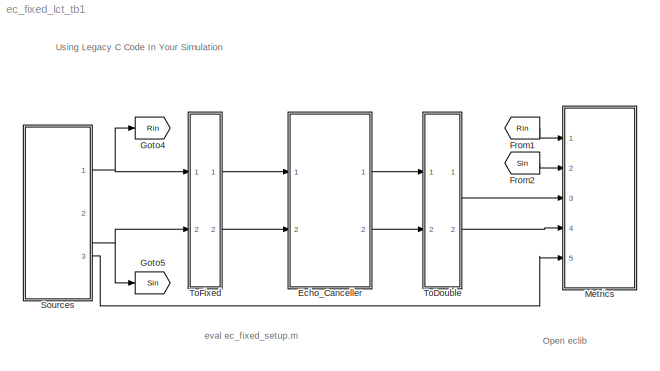
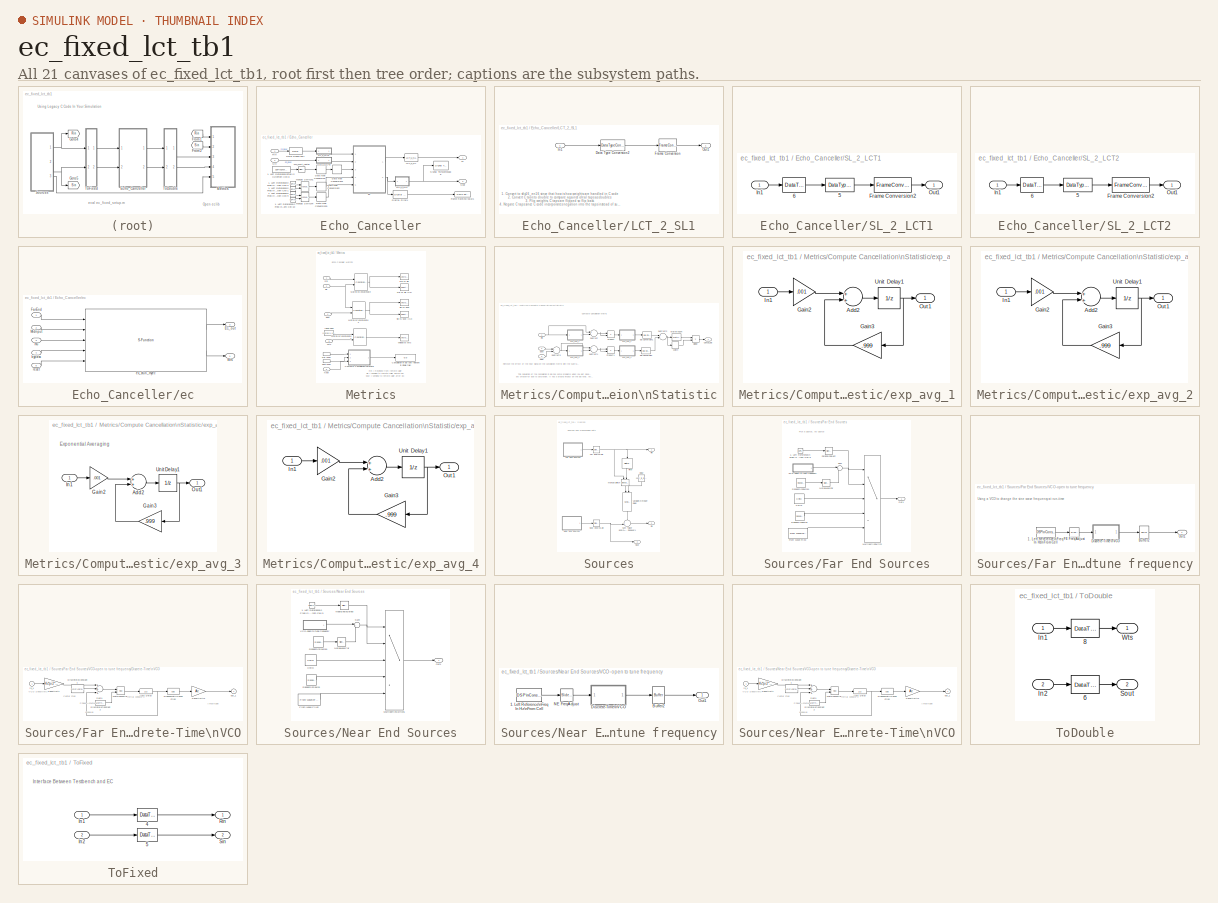
[diagram: thumbnail index - all 21 canvases of the model, root first then tree order]
MODEL ec_fixed_lct_tb1
KIND model
CONFIG PreLoadFcn = working_dir = pwd;\nec_fixed_setup;
CONFIG StartFcn = tic;
CONFIG StopFcn = toc;
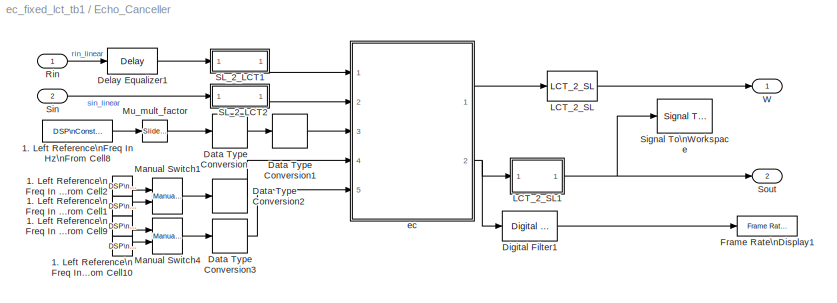
BLOCK [SubSystem] Echo_Canceller
  AncestorBlock = ec_lib/Echo_Canceller\n(LCT//fixed)
  Ports = [2, 2]
  RequestExecContextInheritance = off
  SID = 1
BLOCK [Reference] Echo_Canceller/1. Left Reference\nFreq In Hz\nFrom Cell1  REF=dspsrcs4/DSP\nConstant
  FramebasedOutput = -inf
  FunctionWithSeparateData = off
  InterpretAs1D = -inf
  Ports = [0, 1]
  RTWMemSecDataConstants = Inherit from model
  RTWMemSecDataInternal = Inherit from model
  RTWMemSecDataParameters = Inherit from model
  RTWMemSecFuncExecute = Inherit from model
  RTWMemSecFuncInitTerm = Inherit from model
  SID = 1:3
  SampleMode = Discrete
  ShowPortLabels = FromPortIcon
  SourceBlock = dspsrcs4/DSP\nConstant
  SourceProductBaseCode = DS
  SourceProductName = DSP System Toolbox
  SourceType = DSP Constant
  SystemSampleTime = -1
  Ts = -inf
  Value = 0
  additionalParams = on
  allowOverrides = on
  continuousOutput = Sample-based
  dataType = double
  discreteOutput = Sample-based
  fracBitsMode = Best precision
  framePeriod = pic_frame_size/Fs
  isSigned = on
  numFracBits = 15
  sampTime = pic_frame_size/Fs
  udDataType = sfix(16)
  wordLen = 16
BLOCK [Reference] Echo_Canceller/1. Left Reference\nFreq In Hz\nFrom Cell10  REF=dspsrcs4/DSP\nConstant
  FramebasedOutput = -inf
  FunctionWithSeparateData = off
  InterpretAs1D = -inf
  Ports = [0, 1]
  RTWMemSecDataConstants = Inherit from model
  RTWMemSecDataInternal = Inherit from model
  RTWMemSecDataParameters = Inherit from model
  RTWMemSecFuncExecute = Inherit from model
  RTWMemSecFuncInitTerm = Inherit from model
  SID = 1:4
  SampleMode = Discrete
  ShowPortLabels = FromPortIcon
  SourceBlock = dspsrcs4/DSP\nConstant
  SourceProductBaseCode = DS
  SourceProductName = DSP System Toolbox
  SourceType = DSP Constant
  SystemSampleTime = -1
  Ts = -inf
  Value = 0
  additionalParams = on
  allowOverrides = on
  continuousOutput = Sample-based
  dataType = double
  discreteOutput = Sample-based
  fracBitsMode = Best precision
  framePeriod = pic_frame_size/Fs
  isSigned = on
  numFracBits = 15
  sampTime = pic_frame_size/Fs
  udDataType = sfix(16)
  wordLen = 16
BLOCK [Reference] Echo_Canceller/1. Left Reference\nFreq In Hz\nFrom Cell2  REF=dspsrcs4/DSP\nConstant
  FramebasedOutput = -inf
  FunctionWithSeparateData = off
  InterpretAs1D = -inf
  Ports = [0, 1]
  RTWMemSecDataConstants = Inherit from model
  RTWMemSecDataInternal = Inherit from model
  RTWMemSecDataParameters = Inherit from model
  RTWMemSecFuncExecute = Inherit from model
  RTWMemSecFuncInitTerm = Inherit from model
  SID = 1:5
  SampleMode = Discrete
  ShowPortLabels = FromPortIcon
  SourceBlock = dspsrcs4/DSP\nConstant
  SourceProductBaseCode = DS
  SourceProductName = DSP System Toolbox
  SourceType = DSP Constant
  SystemSampleTime = -1
  Ts = -inf
  Value = 1
  additionalParams = on
  allowOverrides = on
  continuousOutput = Sample-based
  dataType = double
  discreteOutput = Sample-based
  fracBitsMode = Best precision
  framePeriod = pic_frame_size/Fs
  isSigned = on
  numFracBits = 15
  sampTime = pic_frame_size/Fs
  udDataType = sfix(16)
  wordLen = 16
BLOCK [Reference] Echo_Canceller/1. Left Reference\nFreq In Hz\nFrom Cell8  REF=dspsrcs4/DSP\nConstant
  FramebasedOutput = -inf
  FunctionWithSeparateData = off
  InterpretAs1D = -inf
  Ports = [0, 1]
  RTWMemSecDataConstants = Inherit from model
  RTWMemSecDataInternal = Inherit from model
  RTWMemSecDataParameters = Inherit from model
  RTWMemSecFuncExecute = Inherit from model
  RTWMemSecFuncInitTerm = Inherit from model
  SID = 1:6
  SampleMode = Discrete
  ShowPortLabels = FromPortIcon
  SourceBlock = dspsrcs4/DSP\nConstant
  SourceProductBaseCode = DS
  SourceProductName = DSP System Toolbox
  SourceType = DSP Constant
  SystemSampleTime = -1
  Ts = -inf
  Value = -300/32768
  additionalParams = on
  allowOverrides = on
  continuousOutput = Sample-based
  dataType = double
  discreteOutput = Sample-based
  fracBitsMode = Best precision
  framePeriod = 2
  isSigned = on
  numFracBits = 15
  sampTime = pic_frame_size/Fs
  udDataType = sfix(16)
  wordLen = 16
BLOCK [Reference] Echo_Canceller/1. Left Reference\nFreq In Hz\nFrom Cell9  REF=dspsrcs4/DSP\nConstant
  FramebasedOutput = -inf
  FunctionWithSeparateData = off
  InterpretAs1D = -inf
  Ports = [0, 1]
  RTWMemSecDataConstants = Inherit from model
  RTWMemSecDataInternal = Inherit from model
  RTWMemSecDataParameters = Inherit from model
  RTWMemSecFuncExecute = Inherit from model
  RTWMemSecFuncInitTerm = Inherit from model
  SID = 1:7
  SampleMode = Discrete
  ShowPortLabels = FromPortIcon
  SourceBlock = dspsrcs4/DSP\nConstant
  SourceProductBaseCode = DS
  SourceProductName = DSP System Toolbox
  SourceType = DSP Constant
  SystemSampleTime = -1
  Ts = -inf
  Value = 1
  additionalParams = on
  allowOverrides = on
  continuousOutput = Sample-based
  dataType = double
  discreteOutput = Sample-based
  fracBitsMode = Best precision
  framePeriod = pic_frame_size/Fs
  isSigned = on
  numFracBits = 15
  sampTime = pic_frame_size/Fs
  udDataType = sfix(16)
  wordLen = 16
BLOCK [DataTypeConversion] Echo_Canceller/Data Type Conversion
  OutDataTypeStr = fixdt(1,16,15)
  RndMeth = Floor
  SID = 1:8
  SaturateOnIntegerOverflow = off
BLOCK [DataTypeConversion] Echo_Canceller/Data Type Conversion1
  ConvertRealWorld = Stored Integer (SI)
  OutDataTypeStr = int16
  RndMeth = Floor
  SID = 1:9
  SaturateOnIntegerOverflow = off
BLOCK [DataTypeConversion] Echo_Canceller/Data Type Conversion2
  ConvertRealWorld = Stored Integer (SI)
  OutDataTypeStr = int16
  RndMeth = Floor
  SID = 1:10
  SaturateOnIntegerOverflow = off
BLOCK [DataTypeConversion] Echo_Canceller/Data Type Conversion3
  ConvertRealWorld = Stored Integer (SI)
  OutDataTypeStr = int16
  RndMeth = Floor
  SID = 1:11
  SaturateOnIntegerOverflow = off
BLOCK [Reference] Echo_Canceller/Delay Equalizer1  REF=dspsigops/Delay
  Ports = [1, 1]
  SID = 1:12
  SourceBlock = dspsigops/Delay
  SourceProductBaseCode = DS
  SourceProductName = DSP System Toolbox
  SourceType = Delay
  delay = spkr_to_mic_delay +sm_length/2 - ec_length/2
  dif_ic_for_ch = off
  dif_ic_for_dly = off
  dly_unit = Samples
  ic = 0
  ic_detail = off
  reset_popup = None
BLOCK [Reference] Echo_Canceller/Digital Filter1  REF=dsparch4/Digital Filter
  AllPoleFiltStruct = Direct form
  BiQuadCoeffs = [1 0.3 0.4 1 0.1 0.2]
  CoeffSource = Specify via dialog
  DenCoeffs = [1 -.999]
  FIRFiltStruct = Direct form
  FiltPerSampPopup = One filter per frame
  FilterSource = Specify via dialog
  IC = 0
  ICden = 0
  ICnum = 0
  IIRFiltStruct = Direct form II transposed
  LatticeCoeffs = [0.2 0.4]
  LockScale = off
  NumCoeffs = [.001]
  Ports = [1, 1]
  SID = 1:13
  ScaleValues = 1
  SourceBlock = dsparch4/Digital Filter
  SourceProductBaseCode = DS
  SourceProductName = DSP System Toolbox
  SourceType = Digital Filter
  TypePopup = IIR (poles & zeros)
  accumFracLength = 30
  accumMode = Same as product output
  accumWordLength = 32
  additionalParams = off
  allowOverrides = on
  denIgnore = on
  dfiltObjectName = dfilt.dffir([1 2 1])
  firstCoeffFracLength = 15
  firstCoeffMode = Same word length as input
  firstCoeffWordLength = 16
  memoryFracLength = 15
  memoryMode = Same as accumulator
  memoryWordLength = 16
  multiplicandFracLength = 30
  multiplicandMode = Same as output
  multiplicandWordLength = 32
  outputFracLength = 15
  outputMode = Same as accumulator
  outputWordLength = 16
  overflowMode = off
  prodOutputFracLength = 30
  prodOutputMode = Same as input
  prodOutputWordLength = 32
  roundingMode = Floor
  scaleValueFracLength = 14
  secondCoeffFracLength = 15
  secondCoeffMode = Same as numerator
  secondCoeffWordLength = 16
  showAcc = off
  showCoeff = off
  showMem = off
  showMpy = off
  showOut = off
  stageIOMode = Same as input
  stageIOWordLength = 16
  stageInFracLength = 15
  stageOutFracLength = 15
  tapSumFracLength = 30
  tapSumMode = Same as input
  tapSumWordLength = 32
  thirdCoeffFracLength = 15
  thirdCoeffMode = Same as input
  thirdCoeffWordLength = 16
BLOCK [Reference] Echo_Canceller/Frame Rate\nDisplay1  REF=vipsnks/Frame Rate\nDisplay
  Ports = [1]
  SID = 1:14
  SourceBlock = vipsnks/Frame Rate\nDisplay
  SourceProductBaseCode = VP
  SourceProductName = Computer Vision Toolbox
  SourceType = Frame Rate Display
  UpdateRate = 10
BLOCK [Reference] Echo_Canceller/LCT_2_SL  REF=ec_lib/LCT_2_SL
  FunctionWithSeparateData = off
  Ports = [1, 1]
  RTWMemSecDataConstants = Inherit from model
  RTWMemSecDataInternal = Inherit from model
  RTWMemSecDataParameters = Inherit from model
  RTWMemSecFuncExecute = Inherit from model
  RTWMemSecFuncInitTerm = Inherit from model
  SID = 1:15
  ShowPortLabels = FromPortIcon
  SourceBlock = ec_lib/LCT_2_SL
  SourceType = SubSystem
  SystemSampleTime = -1
BLOCK [SubSystem] Echo_Canceller/LCT_2_SL1
  AncestorBlock = echo_cancel_library_enabled/C Fixed Point/LCT_2_SL1
  Ports = [1, 1]
  RequestExecContextInheritance = off
  SID = 1:16
BLOCK [DataTypeConversion] Echo_Canceller/LCT_2_SL1/Data Type Conversion2
  ConvertRealWorld = Stored Integer (SI)
  OutDataTypeStr = fixdt(1,16,14)
  RndMeth = Floor
  SID = 1:16:2
  SaturateOnIntegerOverflow = off
BLOCK [FrameConversion] Echo_Canceller/LCT_2_SL1/Frame Conversion
  Ports = [1, 1]
  SID = 1:16:3
BLOCK [Inport] Echo_Canceller/LCT_2_SL1/In1
  IconDisplay = Port number
  SID = 1:16:1
BLOCK [Outport] Echo_Canceller/LCT_2_SL1/Out1
  IconDisplay = Port number
  SID = 1:16:4
BLOCK [Reference] Echo_Canceller/Manual Switch1  REF=simulink/Signal\nRouting/Manual Switch
  FunctionWithSeparateData = off
  Ports = [2, 1]
  RTWMemSecDataConstants = Inherit from model
  RTWMemSecDataInternal = Inherit from model
  RTWMemSecDataParameters = Inherit from model
  RTWMemSecFuncExecute = Inherit from model
  RTWMemSecFuncInitTerm = Inherit from model
  SID = 1:17
  ShowPortLabels = FromPortIcon
  SourceBlock = simulink/Signal\nRouting/Manual Switch
  SourceProductBaseCode = SL
  SourceProductName = Simulink
  SourceType = Manual Switch
  SystemSampleTime = -1
  action = 0
  sw = 0
  varsize = off
BLOCK [Reference] Echo_Canceller/Manual Switch4  REF=simulink/Signal\nRouting/Manual Switch
  FunctionWithSeparateData = off
  Ports = [2, 1]
  RTWMemSecDataConstants = Inherit from model
  RTWMemSecDataInternal = Inherit from model
  RTWMemSecDataParameters = Inherit from model
  RTWMemSecFuncExecute = Inherit from model
  RTWMemSecFuncInitTerm = Inherit from model
  SID = 1:18
  ShowPortLabels = FromPortIcon
  SourceBlock = simulink/Signal\nRouting/Manual Switch
  SourceProductBaseCode = SL
  SourceProductName = Simulink
  SourceType = Manual Switch
  SystemSampleTime = -1
  action = 0
  sw = 0
  varsize = off
BLOCK [Reference] Echo_Canceller/Mu_mult_factor  REF=simulink/Math\nOperations/Slider\nGain
  FunctionWithSeparateData = off
  Ports = [1, 1]
  RTWMemSecDataConstants = Inherit from model
  RTWMemSecDataInternal = Inherit from model
  RTWMemSecDataParameters = Inherit from model
  RTWMemSecFuncExecute = Inherit from model
  RTWMemSecFuncInitTerm = Inherit from model
  SID = 1:19
  ShowPortLabels = FromPortIcon
  SourceBlock = simulink/Math\nOperations/Slider\nGain
  SourceProductBaseCode = SL
  SourceProductName = Simulink
  SourceType = Slider Gain
  SystemSampleTime = -1
  gain = 3
  high = 10
  low = 0
BLOCK [Inport] Echo_Canceller/Rin
  IconDisplay = Port number
  SID = 1:1
BLOCK [SubSystem] Echo_Canceller/SL_2_LCT1
  AncestorBlock = echo_cancel_library_enabled/C Fixed Point/SL_2_LCT1
  Ports = [1, 1]
  RequestExecContextInheritance = off
  SID = 1:20
BLOCK [DataTypeConversion] Echo_Canceller/SL_2_LCT1/ 5
  ConvertRealWorld = Stored Integer (SI)
  OutDataTypeStr = int16
  RndMeth = Floor
  SID = 1:20:2
  SaturateOnIntegerOverflow = off
BLOCK [DataTypeConversion] Echo_Canceller/SL_2_LCT1/ 6
  OutDataTypeStr = fixdt(1,16,14)
  RndMeth = Floor
  SID = 1:20:3
  SaturateOnIntegerOverflow = off
BLOCK [FrameConversion] Echo_Canceller/SL_2_LCT1/Frame Conversion2
  OutFrame = Sample-based
  Ports = [1, 1]
  SID = 1:20:4
BLOCK [Inport] Echo_Canceller/SL_2_LCT1/In1
  IconDisplay = Port number
  SID = 1:20:1
BLOCK [Outport] Echo_Canceller/SL_2_LCT1/Out1
  IconDisplay = Port number
  SID = 1:20:5
BLOCK [SubSystem] Echo_Canceller/SL_2_LCT2
  AncestorBlock = echo_cancel_library_enabled/C Fixed Point/SL_2_LCT1
  Ports = [1, 1]
  RequestExecContextInheritance = off
  SID = 1:21
BLOCK [DataTypeConversion] Echo_Canceller/SL_2_LCT2/ 5
  ConvertRealWorld = Stored Integer (SI)
  OutDataTypeStr = int16
  RndMeth = Floor
  SID = 1:21:2
  SaturateOnIntegerOverflow = off
BLOCK [DataTypeConversion] Echo_Canceller/SL_2_LCT2/ 6
  OutDataTypeStr = fixdt(1,16,14)
  RndMeth = Floor
  SID = 1:21:3
  SaturateOnIntegerOverflow = off
BLOCK [FrameConversion] Echo_Canceller/SL_2_LCT2/Frame Conversion2
  OutFrame = Sample-based
  Ports = [1, 1]
  SID = 1:21:4
BLOCK [Inport] Echo_Canceller/SL_2_LCT2/In1
  IconDisplay = Port number
  SID = 1:21:1
BLOCK [Outport] Echo_Canceller/SL_2_LCT2/Out1
  IconDisplay = Port number
  SID = 1:21:5
BLOCK [Reference] Echo_Canceller/Signal To\nWorkspace  REF=dspsnks4/Signal To\nWorkspace
  Decimation = 1
  FixptAsFi = on
  FrameMode = Concatenate frames (2-D array)
  FunctionWithSeparateData = off
  MaxDataPoints = inf
  Ports = [1]
  RTWMemSecDataConstants = Inherit from model
  RTWMemSecDataInternal = Inherit from model
  RTWMemSecDataParameters = Inherit from model
  RTWMemSecFuncExecute = Inherit from model
  RTWMemSecFuncInitTerm = Inherit from model
  SID = 1:22
  ShowPortLabels = FromPortIcon
  SourceBlock = dspsnks4/Signal To\nWorkspace
  SourceProductBaseCode = DS
  SourceProductName = DSP System Toolbox
  SourceType = Signal To Workspace
  SystemSampleTime = -1
  VariableName = sout_sl
BLOCK [Inport] Echo_Canceller/Sin
  IconDisplay = Port number
  Port = 2
  SID = 1:2
BLOCK [Outport] Echo_Canceller/Sout
  IconDisplay = Port number
  Port = 2
  SID = 1:33
BLOCK [Outport] Echo_Canceller/W
  IconDisplay = Port number
  SID = 1:32
BLOCK [SubSystem] Echo_Canceller/ec
  Ports = [5, 2]
  RequestExecContextInheritance = off
  SID = 1:23
BLOCK [Outport] Echo_Canceller/ec/EC_out
  IconDisplay = Port number
  Port = 2
  SID = 1:31
BLOCK [Inport] Echo_Canceller/ec/FarEnd
  IconDisplay = Port number
  SID = 1:24
BLOCK [Inport] Echo_Canceller/ec/MicInput
  IconDisplay = Port number
  Port = 2
  SID = 1:25
BLOCK [Outport] Echo_Canceller/ec/Wts
  IconDisplay = Port number
  SID = 1:30
BLOCK [Inport] Echo_Canceller/ec/bypass
  IconDisplay = Port number
  Port = 4
  SID = 1:27
BLOCK [S-Function] Echo_Canceller/ec/ex_sfun_myec
  EnableBusSupport = off
  FunctionName = ex_sfun_myec
  Ports = [5, 2]
  SFcnIsStateOwnerBlock = off
  SFunctionDeploymentMode = off
  SID = 1:29
BLOCK [Inport] Echo_Canceller/ec/mu
  IconDisplay = Port number
  Port = 3
  SID = 1:26
BLOCK [Inport] Echo_Canceller/ec/reset
  IconDisplay = Port number
  Port = 5
  SID = 1:28
BLOCK [From] From1
  CloseFcn = tagdialog Close
  GotoTag = Rin
  SID = 2
  TagVisibility = global
BLOCK [From] From2
  CloseFcn = tagdialog Close
  GotoTag = Sin
  SID = 3
  TagVisibility = global
BLOCK [Goto] Goto4
  GotoTag = Rin
  SID = 4
  TagVisibility = global
BLOCK [Goto] Goto5
  GotoTag = Sin
  SID = 5
  TagVisibility = global
BLOCK [SubSystem] Metrics
  Ports = [5]
  RequestExecContextInheritance = off
  SID = 6
  TreatAsAtomicUnit = on
BLOCK [Display] Metrics/Cancellation in dB (only relevant in single talk)
  Decimation = 1
  Ports = [1]
  SID = 12
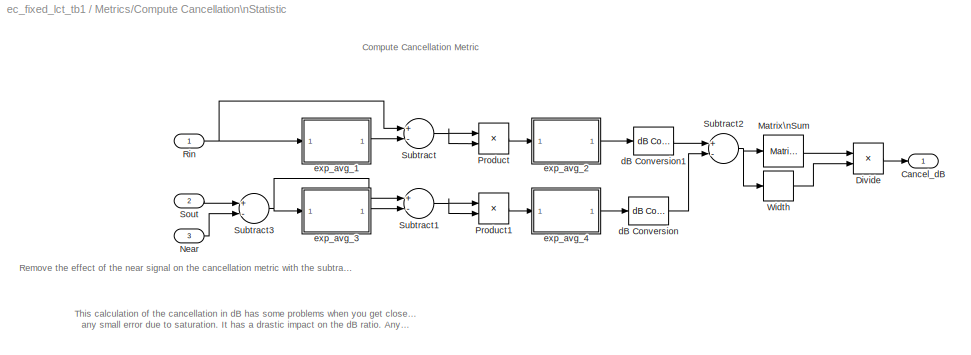
BLOCK [SubSystem] Metrics/Compute Cancellation\nStatistic
  Ports = [3, 1]
  RequestExecContextInheritance = off
  SID = 13
BLOCK [Outport] Metrics/Compute Cancellation\nStatistic/Cancel_dB
  IconDisplay = Port number
  SID = 57
BLOCK [Product] Metrics/Compute Cancellation\nStatistic/Divide
  InputSameDT = off
  Inputs = */
  OutDataTypeStr = Inherit: Inherit via internal rule
  Ports = [2, 1]
  RndMeth = Floor
  SID = 17
  SaturateOnIntegerOverflow = off
BLOCK [Reference] Metrics/Compute Cancellation\nStatistic/Matrix\nSum  REF=dspmtrx3/Matrix\nSum
  Dim = Columns
  LockScale = off
  Ports = [1, 1]
  SID = 18
  SourceBlock = dspmtrx3/Matrix\nSum
  SourceProductBaseCode = DS
  SourceProductName = DSP System Toolbox
  SourceType = Matrix Sum
  accumFracLength = 0
  accumMode = Binary point scaling
  accumWordLength = 32
  additionalParams = on
  allowOverrides = on
  outputFracLength = 0
  outputMode = Binary point scaling
  outputWordLength = 32
  overflowMode = off
  roundingMode = Floor
BLOCK [Inport] Metrics/Compute Cancellation\nStatistic/Near
  IconDisplay = Port number
  Port = 3
  SID = 16
BLOCK [Product] Metrics/Compute Cancellation\nStatistic/Product
  InputSameDT = off
  OutDataTypeStr = Inherit: Inherit via internal rule
  Ports = [2, 1]
  SID = 19
  SaturateOnIntegerOverflow = off
BLOCK [Product] Metrics/Compute Cancellation\nStatistic/Product1
  InputSameDT = off
  OutDataTypeStr = Inherit: Inherit via internal rule
  Ports = [2, 1]
  SID = 20
  SaturateOnIntegerOverflow = off
BLOCK [Inport] Metrics/Compute Cancellation\nStatistic/Rin
  IconDisplay = Port number
  SID = 14
BLOCK [Inport] Metrics/Compute Cancellation\nStatistic/Sout
  IconDisplay = Port number
  Port = 2
  SID = 15
BLOCK [Sum] Metrics/Compute Cancellation\nStatistic/Subtract
  InputSameDT = off
  Inputs = +-
  OutDataTypeStr = Inherit: Inherit via internal rule
  Ports = [2, 1]
  SID = 21
  SaturateOnIntegerOverflow = off
BLOCK [Sum] Metrics/Compute Cancellation\nStatistic/Subtract1
  InputSameDT = off
  Inputs = +-
  OutDataTypeStr = Inherit: Inherit via internal rule
  Ports = [2, 1]
  SID = 22
  SaturateOnIntegerOverflow = off
BLOCK [Sum] Metrics/Compute Cancellation\nStatistic/Subtract2
  InputSameDT = off
  Inputs = +-
  OutDataTypeStr = Inherit: Inherit via internal rule
  Ports = [2, 1]
  SID = 23
  SaturateOnIntegerOverflow = off
BLOCK [Sum] Metrics/Compute Cancellation\nStatistic/Subtract3
  InputSameDT = off
  Inputs = +-
  OutDataTypeStr = Inherit: Inherit via internal rule
  Ports = [2, 1]
  SID = 24
  SaturateOnIntegerOverflow = off
BLOCK [Width] Metrics/Compute Cancellation\nStatistic/Width
  SID = 25
BLOCK [Reference] Metrics/Compute Cancellation\nStatistic/dB Conversion  REF=dspmathops/dB Conversion
  FunctionWithSeparateData = off
  Ports = [1, 1]
  R = 1
  RTWMemSecDataConstants = Inherit from model
  RTWMemSecDataInternal = Inherit from model
  RTWMemSecDataParameters = Inherit from model
  RTWMemSecFuncExecute = Inherit from model
  RTWMemSecFuncInitTerm = Inherit from model
  SID = 26
  ShowPortLabels = FromPortIcon
  SourceBlock = dspmathops/dB Conversion
  SourceProductBaseCode = DS
  SourceProductName = DSP System Toolbox
  SourceType = dB Conversion
  SystemSampleTime = -1
  dBtype = dB
  fuzz = on
  intype = Power
BLOCK [Reference] Metrics/Compute Cancellation\nStatistic/dB Conversion1  REF=dspmathops/dB Conversion
  FunctionWithSeparateData = off
  Ports = [1, 1]
  R = 1
  RTWMemSecDataConstants = Inherit from model
  RTWMemSecDataInternal = Inherit from model
  RTWMemSecDataParameters = Inherit from model
  RTWMemSecFuncExecute = Inherit from model
  RTWMemSecFuncInitTerm = Inherit from model
  SID = 27
  ShowPortLabels = FromPortIcon
  SourceBlock = dspmathops/dB Conversion
  SourceProductBaseCode = DS
  SourceProductName = DSP System Toolbox
  SourceType = dB Conversion
  SystemSampleTime = -1
  dBtype = dB
  fuzz = on
  intype = Power
BLOCK [SubSystem] Metrics/Compute Cancellation\nStatistic/exp_avg_1
  Ports = [1, 1]
  RequestExecContextInheritance = off
  SID = 28
BLOCK [Sum] Metrics/Compute Cancellation\nStatistic/exp_avg_1/Add2
  InputSameDT = off
  OutDataTypeStr = Inherit: Inherit via internal rule
  Ports = [2, 1]
  SID = 30
  SaturateOnIntegerOverflow = off
BLOCK [Gain] Metrics/Compute Cancellation\nStatistic/exp_avg_1/Gain2
  Gain = .001
  OutDataTypeStr = Inherit: Inherit via internal rule
  ParamDataTypeStr = Inherit: Inherit via internal rule
  SID = 31
  SaturateOnIntegerOverflow = off
BLOCK [Gain] Metrics/Compute Cancellation\nStatistic/exp_avg_1/Gain3
  Gain = .999
  OutDataTypeStr = Inherit: Inherit via internal rule
  ParamDataTypeStr = Inherit: Inherit via internal rule
  SID = 32
  SaturateOnIntegerOverflow = off
BLOCK [Inport] Metrics/Compute Cancellation\nStatistic/exp_avg_1/In1
  IconDisplay = Port number
  SID = 29
BLOCK [Outport] Metrics/Compute Cancellation\nStatistic/exp_avg_1/Out1
  IconDisplay = Port number
  SID = 34
BLOCK [UnitDelay] Metrics/Compute Cancellation\nStatistic/exp_avg_1/Unit Delay1
  SID = 33
  SampleTime = -1
BLOCK [SubSystem] Metrics/Compute Cancellation\nStatistic/exp_avg_2
  Ports = [1, 1]
  RequestExecContextInheritance = off
  SID = 35
BLOCK [Sum] Metrics/Compute Cancellation\nStatistic/exp_avg_2/Add2
  InputSameDT = off
  OutDataTypeStr = Inherit: Inherit via internal rule
  Ports = [2, 1]
  SID = 37
  SaturateOnIntegerOverflow = off
BLOCK [Gain] Metrics/Compute Cancellation\nStatistic/exp_avg_2/Gain2
  Gain = .001
  OutDataTypeStr = Inherit: Inherit via internal rule
  ParamDataTypeStr = Inherit: Inherit via internal rule
  SID = 38
  SaturateOnIntegerOverflow = off
BLOCK [Gain] Metrics/Compute Cancellation\nStatistic/exp_avg_2/Gain3
  Gain = .999
  OutDataTypeStr = Inherit: Inherit via internal rule
  ParamDataTypeStr = Inherit: Inherit via internal rule
  SID = 39
  SaturateOnIntegerOverflow = off
BLOCK [Inport] Metrics/Compute Cancellation\nStatistic/exp_avg_2/In1
  IconDisplay = Port number
  SID = 36
BLOCK [Outport] Metrics/Compute Cancellation\nStatistic/exp_avg_2/Out1
  IconDisplay = Port number
  SID = 41
BLOCK [UnitDelay] Metrics/Compute Cancellation\nStatistic/exp_avg_2/Unit Delay1
  SID = 40
  SampleTime = -1
BLOCK [SubSystem] Metrics/Compute Cancellation\nStatistic/exp_avg_3
  Ports = [1, 1]
  RequestExecContextInheritance = off
  SID = 42
BLOCK [Sum] Metrics/Compute Cancellation\nStatistic/exp_avg_3/Add2
  InputSameDT = off
  OutDataTypeStr = Inherit: Inherit via internal rule
  Ports = [2, 1]
  SID = 44
  SaturateOnIntegerOverflow = off
BLOCK [Gain] Metrics/Compute Cancellation\nStatistic/exp_avg_3/Gain2
  Gain = .001
  OutDataTypeStr = Inherit: Inherit via internal rule
  ParamDataTypeStr = Inherit: Inherit via internal rule
  SID = 45
  SaturateOnIntegerOverflow = off
BLOCK [Gain] Metrics/Compute Cancellation\nStatistic/exp_avg_3/Gain3
  Gain = .999
  OutDataTypeStr = Inherit: Inherit via internal rule
  ParamDataTypeStr = Inherit: Inherit via internal rule
  SID = 46
  SaturateOnIntegerOverflow = off
BLOCK [Inport] Metrics/Compute Cancellation\nStatistic/exp_avg_3/In1
  IconDisplay = Port number
  SID = 43
BLOCK [Outport] Metrics/Compute Cancellation\nStatistic/exp_avg_3/Out1
  IconDisplay = Port number
  SID = 48
BLOCK [UnitDelay] Metrics/Compute Cancellation\nStatistic/exp_avg_3/Unit Delay1
  SID = 47
  SampleTime = -1
BLOCK [SubSystem] Metrics/Compute Cancellation\nStatistic/exp_avg_4
  Ports = [1, 1]
  RequestExecContextInheritance = off
  SID = 50
BLOCK [Sum] Metrics/Compute Cancellation\nStatistic/exp_avg_4/Add2
  InputSameDT = off
  OutDataTypeStr = Inherit: Inherit via internal rule
  Ports = [2, 1]
  SID = 52
  SaturateOnIntegerOverflow = off
BLOCK [Gain] Metrics/Compute Cancellation\nStatistic/exp_avg_4/Gain2
  Gain = .001
  OutDataTypeStr = Inherit: Inherit via internal rule
  ParamDataTypeStr = Inherit: Inherit via internal rule
  SID = 53
  SaturateOnIntegerOverflow = off
BLOCK [Gain] Metrics/Compute Cancellation\nStatistic/exp_avg_4/Gain3
  Gain = .999
  OutDataTypeStr = Inherit: Inherit via internal rule
  ParamDataTypeStr = Inherit: Inherit via internal rule
  SID = 54
  SaturateOnIntegerOverflow = off
BLOCK [Inport] Metrics/Compute Cancellation\nStatistic/exp_avg_4/In1
  IconDisplay = Port number
  SID = 51
BLOCK [Outport] Metrics/Compute Cancellation\nStatistic/exp_avg_4/Out1
  IconDisplay = Port number
  SID = 56
BLOCK [UnitDelay] Metrics/Compute Cancellation\nStatistic/exp_avg_4/Unit Delay1
  SID = 55
  SampleTime = -1
BLOCK [Constant] Metrics/Ideal Taps
  FramePeriod = pic_frame_size/Fs
  SID = 61
  SampleTime = pic_frame_size/Fs
  SamplingMode = Frame based
  Value = [zeros(1,(ec_length-sm_length)/2) spkr_to_mic_filter zeros(1,(ec_length-sm_length)/2)]
BLOCK [Concatenate] Metrics/Matrix\nConcatenate
  ConcatenateDimension = 2
  Mode = Multidimensional array
  Ports = [2, 1]
  SID = 62
BLOCK [Concatenate] Metrics/Matrix\nConcatenate1
  ConcatenateDimension = 2
  Mode = Multidimensional array
  Ports = [2, 1]
  SID = 63
BLOCK [Concatenate] Metrics/Matrix\nConcatenate2
  ConcatenateDimension = 2
  Mode = Multidimensional array
  Ports = [2, 1]
  SID = 64
BLOCK [Inport] Metrics/Near
  IconDisplay = Port number
  Port = 5
  SID = 11
BLOCK [Inport] Metrics/Rin
  IconDisplay = Port number
  SID = 7
BLOCK [InportShadow] Metrics/Rin (dup)
  IconDisplay = Port number
  SID = 65
BLOCK [Reference] Metrics/Rin vs Sin  REF=dspsnks4/Vector\nScope
  AxisGrid = on
  AxisLegend = off
  AxisProperties = off
  AxisZoom = off
  DisplayProperties = off
  Domain = Time
  FigPos = [21 752 370 182]
  FrameNumber = on
  HorizSpan = 1
  InheritXIncr = on
  LineColors = [1 0 0]|[0 1 0]
  LineProperties = off
  Memory = off
  OpenScopeAtSimStart = on
  OpenScopeImmediately = off
  Ports = [1]
  SID = 66
  ScopeProperties = on
  ShowPortLabels = off
  SourceBlock = dspsnks4/Vector\nScope
  SourceProductBaseCode = DS
  SourceProductName = DSP System Toolbox
  SourceType = Vector Scope
  XIncr = 1
  XLabel = Time
  XLimit = Auto
  XMax = 1
  XMin = 0
  XRange = [0...Fs/2]
  XStart = 0
  XUnits = Hertz
  YLabel = Amplitude
  YMax = 1
  YMin = -1
  YUnits = dB
BLOCK [Reference] Metrics/Rin vs Sin (Hz)  REF=dspsnks4/Spectrum\nScope
  AxisGrid = on
  AxisLegend = off
  AxisProperties = off
  AxisZoom = off
  BufferSize = 512
  DisplayProperties = off
  Domain = Frequency
  FFTlength = 128
  FigPos = [22 519 370 178]
  FrameNumber = on
  FunctionWithSeparateData = off
  HorizSpan = 1
  InheritXIncr = on
  LineColors = [1 0 0]|[0 1 0]
  LineProperties = off
  Memory = off
  OpenScopeAtSimStart = on
  OpenScopeImmediately = off
  Overlap = 64
  Ports = [1]
  RTWMemSecDataConstants = Inherit from model
  RTWMemSecDataInternal = Inherit from model
  RTWMemSecDataParameters = Inherit from model
  RTWMemSecFuncExecute = Inherit from model
  RTWMemSecFuncInitTerm = Inherit from model
  RsSpecScope = 50
  SID = 67
  ScopeProperties = on
  ShowPortLabels = none
  SourceBlock = dspsnks4/Spectrum\nScope
  SourceProductBaseCode = DS
  SourceProductName = DSP System Toolbox
  SourceType = Spectrum Scope
  SystemSampleTime = -1
  UseBuffer = on
  XIncr = 1.0
  XLabel = Samples
  XLimit = Auto
  XMax = 1
  XMin = 0
  XRange = [0...Fs/2]
  XUnits = Hertz
  YLabel = Magnitude-squared, dB
  YMax = 22.6100164436924
  YMin = -87.2863320440191
  YUnits = dB
  betaSpecScope = 5
  inpFftLenInherit = off
  numAvg = 2
  winsampSpecScope = Periodic
  wintypeSpecScope = Hann
BLOCK [Inport] Metrics/Sin
  IconDisplay = Port number
  Port = 2
  SID = 8
BLOCK [Reference] Metrics/Sin vs Sout  REF=dspsnks4/Vector\nScope
  AxisGrid = on
  AxisLegend = off
  AxisProperties = off
  AxisZoom = off
  DisplayProperties = off
  Domain = Time
  FigPos = [398 283 365 181]
  FrameNumber = on
  HorizSpan = 1
  InheritXIncr = on
  LineColors = [1 0 0]|[0 1 0]
  LineProperties = off
  Memory = off
  OpenScopeAtSimStart = on
  OpenScopeImmediately = off
  Ports = [1]
  SID = 68
  ScopeProperties = on
  ShowPortLabels = off
  SourceBlock = dspsnks4/Vector\nScope
  SourceProductBaseCode = DS
  SourceProductName = DSP System Toolbox
  SourceType = Vector Scope
  XIncr = 1
  XLabel = Time
  XLimit = Auto
  XMax = 1
  XMin = 0
  XRange = [0...Fs/2]
  XStart = 0
  XUnits = Hertz
  YLabel = Amplitude
  YMax = 1.10983865900285
  YMin = -1.10854137455551
  YUnits = dB
BLOCK [Reference] Metrics/Sin vs Sout (Hz)  REF=dspsnks4/Spectrum\nScope
  AxisGrid = on
  AxisLegend = off
  AxisProperties = off
  AxisZoom = off
  BufferSize = 512
  DisplayProperties = off
  Domain = Frequency
  FFTlength = 128
  FigPos = [400 519 365 181]
  FrameNumber = on
  FunctionWithSeparateData = off
  HorizSpan = 1
  InheritXIncr = on
  LineColors = [1 0 0]|[0 1 0]
  LineProperties = off
  Memory = off
  OpenScopeAtSimStart = on
  OpenScopeImmediately = off
  Overlap = 64
  Ports = [1]
  RTWMemSecDataConstants = Inherit from model
  RTWMemSecDataInternal = Inherit from model
  RTWMemSecDataParameters = Inherit from model
  RTWMemSecFuncExecute = Inherit from model
  RTWMemSecFuncInitTerm = Inherit from model
  RsSpecScope = 50
  SID = 69
  ScopeProperties = on
  ShowPortLabels = none
  SourceBlock = dspsnks4/Spectrum\nScope
  SourceProductBaseCode = DS
  SourceProductName = DSP System Toolbox
  SourceType = Spectrum Scope
  SystemSampleTime = -1
  UseBuffer = on
  XIncr = 1.0
  XLabel = Samples
  XLimit = Auto
  XMax = 1
  XMin = 0
  XRange = [0...Fs/2]
  XUnits = Hertz
  YLabel = Magnitude-squared, dB
  YMax = 21.0948472865104
  YMin = -128.562839071617
  YUnits = dB
  betaSpecScope = 5
  inpFftLenInherit = off
  numAvg = 2
  winsampSpecScope = Periodic
  wintypeSpecScope = Hann
BLOCK [Inport] Metrics/Sout
  IconDisplay = Port number
  Port = 4
  SID = 10
BLOCK [InportShadow] Metrics/Sout(dup)
  IconDisplay = Port number
  Port = 4
  SID = 70
BLOCK [Reference] Metrics/Wideal vs Wts  REF=dspsnks4/Vector\nScope
  AxisGrid = on
  AxisLegend = off
  AxisProperties = off
  AxisZoom = off
  DisplayProperties = off
  Domain = Time
  FigPos = [22 284 368 179]
  FrameNumber = on
  HorizSpan = 1
  InheritXIncr = on
  LineColors = [1 0 0]|[0 1 0]
  LineProperties = off
  Memory = off
  OpenScopeAtSimStart = on
  OpenScopeImmediately = off
  Ports = [1]
  SID = 71
  ScopeProperties = on
  ShowPortLabels = off
  SourceBlock = dspsnks4/Vector\nScope
  SourceProductBaseCode = DS
  SourceProductName = DSP System Toolbox
  SourceType = Vector Scope
  XIncr = 1
  XLabel = Time
  XLimit = Auto
  XMax = 1
  XMin = 0
  XRange = [0...Fs/2]
  XStart = 0
  XUnits = Hertz
  YLabel = Amplitude
  YMax = 0.388477789695183
  YMin = -0.387806694375187
  YUnits = dB
BLOCK [Inport] Metrics/Wts
  IconDisplay = Port number
  Port = 3
  SID = 9
BLOCK [SubSystem] Sources
  Ports = [0, 3]
  RequestExecContextInheritance = off
  SID = 74
BLOCK [Constant] Sources/Delay
  SID = 75
  SampleTime = pic_frame_size/Fs
  Value = spkr_to_mic_delay
BLOCK [SubSystem] Sources/Far End Sources
  Ports = [0, 1]
  RequestExecContextInheritance = off
  SID = 77
BLOCK [Reference] Sources/Far End Sources/1. Left Reference\nFreq In Hz\nFrom Cell3  REF=dspsrcs4/DSP\nConstant
  FramebasedOutput = -inf
  FunctionWithSeparateData = off
  InterpretAs1D = -inf
  Ports = [0, 1]
  RTWMemSecDataConstants = Inherit from model
  RTWMemSecDataInternal = Inherit from model
  RTWMemSecDataParameters = Inherit from model
  RTWMemSecFuncExecute = Inherit from model
  RTWMemSecFuncInitTerm = Inherit from model
  SID = 78
  SampleMode = Discrete
  ShowPortLabels = FromPortIcon
  SourceBlock = dspsrcs4/DSP\nConstant
  SourceProductBaseCode = DS
  SourceProductName = DSP System Toolbox
  SourceType = DSP Constant
  SystemSampleTime = -1
  Ts = -inf
  Value = 1
  additionalParams = on
  allowOverrides = on
  continuousOutput = Sample-based
  dataType = double
  discreteOutput = Sample-based
  fracBitsMode = Best precision
  framePeriod = 2
  isSigned = on
  numFracBits = 15
  sampTime = 1/Fs
  udDataType = sfix(16)
  wordLen = 16
BLOCK [Reference] Sources/Far End Sources/Chirp  REF=dspsrcs4/Chirp
  Ports = [0, 1]
  SID = 79
  SourceBlock = dspsrcs4/Chirp
  SourceProductBaseCode = DS
  SourceProductName = DSP System Toolbox
  SourceType = Chirp
  Ts = 1/Fs
  Tsweep = pic_frame_size/Fs
  datatype = Double
  f0 = 100
  f1 = 4000
  mode = Unidirectional
  phase = 0
  spf = pic_frame_size
  sweep = Linear
  t1 = pic_frame_size/Fs
BLOCK [Reference] Sources/Far End Sources/FarEnd\nSelect  REF=simulink/Math\nOperations/Slider\nGain
  FunctionWithSeparateData = off
  Ports = [1, 1]
  RTWMemSecDataConstants = Inherit from model
  RTWMemSecDataInternal = Inherit from model
  RTWMemSecDataParameters = Inherit from model
  RTWMemSecFuncExecute = Inherit from model
  RTWMemSecFuncInitTerm = Inherit from model
  SID = 80
  ShowPortLabels = FromPortIcon
  SourceBlock = simulink/Math\nOperations/Slider\nGain
  SourceProductBaseCode = SL
  SourceProductName = Simulink
  SourceType = Slider Gain
  SystemSampleTime = -1
  gain = 3
  high = 10
  low = 0
BLOCK [Reference] Sources/Far End Sources/From Wave File2  REF=dspwin32/From Wave\nFile
  FileName = far_end.wav
  MinBufSize = 80
  Ports = [0, 1]
  SID = 81
  SamplesPerFrame = 80
  SourceBlock = dspwin32/From Wave\nFile
  SourceProductBaseCode = DS
  SourceProductName = DSP System Toolbox
  SourceType = From Wave File
  bLoop = on
  dType = double
  firstSampleOutput = off
  lastSampleOutput = off
  restartMode = immediately after last sample
  timesToPlay = inf
BLOCK [MultiPortSwitch] Sources/Far End Sources/Multiport\nSwitch
  InputSameDT = off
  Inputs = 4
  Ports = [5, 1]
  SID = 82
  SampleTime = pic_frame_size/Fs
  SaturateOnIntegerOverflow = off
BLOCK [Reference] Sources/Far End Sources/NoiseLevelFar  REF=simulink/Math\nOperations/Slider\nGain
  FunctionWithSeparateData = off
  Ports = [1, 1]
  RTWMemSecDataConstants = Inherit from model
  RTWMemSecDataInternal = Inherit from model
  RTWMemSecDataParameters = Inherit from model
  RTWMemSecFuncExecute = Inherit from model
  RTWMemSecFuncInitTerm = Inherit from model
  SID = 83
  ShowPortLabels = FromPortIcon
  SourceBlock = simulink/Math\nOperations/Slider\nGain
  SourceProductBaseCode = SL
  SourceProductName = Simulink
  SourceType = Slider Gain
  SystemSampleTime = -1
  gain = 0.01
  high = 1
  low = 0
BLOCK [Outport] Sources/Far End Sources/Out1
  IconDisplay = Port number
  SID = 110
BLOCK [Reference] Sources/Far End Sources/Random\nSource  REF=dspsrcs4/Random\nSource
  CltLength = 12
  DataType = Double
  IsInherit = off
  MaxVal = 1
  MeanVal = 0
  MinVal = 0
  NormMethod = Ziggurat
  OutComplex = Real
  Ports = [0, 1]
  RepMode = Repeatable
  SID = 84
  SampFrame = pic_frame_size
  SampMode = Discrete
  SampTime = 1/Fs
  SourceBlock = dspsrcs4/Random\nSource
  SourceProductBaseCode = DS
  SourceProductName = DSP System Toolbox
  SourceType = Random Source
  SrcType = Gaussian
  UserData = DataTag0
  UserDataPersistent = on
  VarVal = 1
  rawSeed = 1
BLOCK [Reference] Sources/Far End Sources/Random\nSource1  REF=dspsrcs4/Random\nSource
  CltLength = 12
  DataType = Double
  IsInherit = off
  MaxVal = 1
  MeanVal = 0
  MinVal = 0
  NormMethod = Ziggurat
  OutComplex = Real
  Ports = [0, 1]
  RepMode = Not repeatable
  SID = 85
  SampFrame = pic_frame_size
  SampMode = Discrete
  SampTime = 1/Fs
  SourceBlock = dspsrcs4/Random\nSource
  SourceProductBaseCode = DS
  SourceProductName = DSP System Toolbox
  SourceType = Random Source
  SrcType = Gaussian
  UserData = DataTag1
  UserDataPersistent = on
  VarVal = 1
  rawSeed = 1
BLOCK [Sum] Sources/Far End Sources/Sum
  IconShape = round
  InputSameDT = off
  Inputs = |++
  OutDataTypeStr = Inherit: Inherit via internal rule
  Ports = [2, 1]
  SID = 86
  SaturateOnIntegerOverflow = off
BLOCK [SubSystem] Sources/Far End Sources/VCO-open to tune frequency
  Ports = [0, 1]
  RequestExecContextInheritance = off
  SID = 87
BLOCK [Reference] Sources/Far End Sources/VCO-open to tune frequency/1. Left Reference\nFreq In Hz\nFrom Cell  REF=dspsrcs4/DSP\nConstant
  FramebasedOutput = -inf
  FunctionWithSeparateData = off
  InterpretAs1D = -inf
  Ports = [0, 1]
  RTWMemSecDataConstants = Inherit from model
  RTWMemSecDataInternal = Inherit from model
  RTWMemSecDataParameters = Inherit from model
  RTWMemSecFuncExecute = Inherit from model
  RTWMemSecFuncInitTerm = Inherit from model
  SID = 88
  SampleMode = Discrete
  ShowPortLabels = FromPortIcon
  SourceBlock = dspsrcs4/DSP\nConstant
  SourceProductBaseCode = DS
  SourceProductName = DSP System Toolbox
  SourceType = DSP Constant
  SystemSampleTime = -1
  Ts = -inf
  Value = 1000
  additionalParams = on
  allowOverrides = on
  continuousOutput = Sample-based
  dataType = double
  discreteOutput = Sample-based
  fracBitsMode = Best precision
  framePeriod = 2
  isSigned = on
  numFracBits = 15
  sampTime = 1/Fs
  udDataType = sfix(16)
  wordLen = 16
BLOCK [Reference] Sources/Far End Sources/VCO-open to tune frequency/Buffer2  REF=dspbuff3/Buffer
  N = pic_frame_size
  Ports = [1, 1]
  SID = 89
  SourceBlock = dspbuff3/Buffer
  SourceProductBaseCode = DS
  SourceProductName = DSP System Toolbox
  SourceType = Buffer
  V = 0
  ic = 0
BLOCK [SubSystem] Sources/Far End Sources/VCO-open to tune frequency/Discrete-Time\nVCO
  Ports = [1, 1]
  RequestExecContextInheritance = off
  SID = 90
BLOCK [Reference] Sources/Far End Sources/VCO-open to tune frequency/Discrete-Time\nVCO/Discrete\nConstant1  REF=dspsrcs4/DSP\nConstant
  FramebasedOutput = off
  FunctionWithSeparateData = off
  InterpretAs1D = on
  Ports = [0, 1]
  RTWMemSecDataConstants = Inherit from model
  RTWMemSecDataInternal = Inherit from model
  RTWMemSecDataParameters = Inherit from model
  RTWMemSecFuncExecute = Inherit from model
  RTWMemSecFuncInitTerm = Inherit from model
  SID = 92
  SampleMode = Discrete
  ShowPortLabels = FromPortIcon
  SourceBlock = dspsrcs4/DSP\nConstant
  SourceProductBaseCode = DS
  SourceProductName = DSP System Toolbox
  SourceType = DSP Constant
  SystemSampleTime = -1
  Ts = 1/8000
  Value = Fc*pi2*ts
  additionalParams = on
  allowOverrides = on
  continuousOutput = Sample-based
  dataType = Inherit via back propagation
  discreteOutput = Sample-based (interpret vectors as 1-D)
  fracBitsMode = Best precision
  framePeriod = 1/8000
  isSigned = on
  numFracBits = 15
  sampTime = 1/8000
  udDataType = sfix(16)
  wordLen = 16
BLOCK [Reference] Sources/Far End Sources/VCO-open to tune frequency/Discrete-Time\nVCO/Discrete\nConstant2  REF=dspsrcs4/DSP\nConstant
  FramebasedOutput = off
  FunctionWithSeparateData = off
  InterpretAs1D = on
  Ports = [0, 1]
  RTWMemSecDataConstants = Inherit from model
  RTWMemSecDataInternal = Inherit from model
  RTWMemSecDataParameters = Inherit from model
  RTWMemSecFuncExecute = Inherit from model
  RTWMemSecFuncInitTerm = Inherit from model
  SID = 93
  SampleMode = Discrete
  ShowPortLabels = FromPortIcon
  SourceBlock = dspsrcs4/DSP\nConstant
  SourceProductBaseCode = DS
  SourceProductName = DSP System Toolbox
  SourceType = DSP Constant
  SystemSampleTime = -1
  Ts = 1/8000
  Value = pi2
  additionalParams = on
  allowOverrides = on
  continuousOutput = Sample-based
  dataType = Inherit via back propagation
  discreteOutput = Sample-based (interpret vectors as 1-D)
  fracBitsMode = Best precision
  framePeriod = 1/8000
  isSigned = on
  numFracBits = 15
  sampTime = 1/8000
  udDataType = sfix(16)
  wordLen = 16
BLOCK [Math] Sources/Far End Sources/VCO-open to tune frequency/Discrete-Time\nVCO/Math\nFunction
  Operator = mod
  Ports = [2, 1]
  SID = 94
BLOCK [Gain] Sources/Far End Sources/VCO-open to tune frequency/Discrete-Time\nVCO/Sensitivity
  Gain = Kc*pi2*ts
  SID = 95
BLOCK [Gain] Sources/Far End Sources/VCO-open to tune frequency/Discrete-Time\nVCO/Sensitivity2
  Gain = Ac
  SID = 96
BLOCK [Sum] Sources/Far End Sources/VCO-open to tune frequency/Discrete-Time\nVCO/Sum1
  Inputs = +++
  Ports = [3, 1]
  SID = 97
BLOCK [Trigonometry] Sources/Far End Sources/VCO-open to tune frequency/Discrete-Time\nVCO/Trigonometric\nFunction
  Operator = cos
  Ports = [1, 1]
  SID = 98
BLOCK [UnitDelay] Sources/Far End Sources/VCO-open to tune frequency/Discrete-Time\nVCO/Unit Delay
  InitialCondition = Ph
  SID = 99
  SampleTime = ts
BLOCK [Inport] Sources/Far End Sources/VCO-open to tune frequency/Discrete-Time\nVCO/in_1
  IconDisplay = Port number
  SID = 91
BLOCK [Outport] Sources/Far End Sources/VCO-open to tune frequency/Discrete-Time\nVCO/out_1
  IconDisplay = Port number
  InitialOutput = 0
  SID = 100
BLOCK [Reference] Sources/Far End Sources/VCO-open to tune frequency/FE FreqAdjust  REF=simulink/Math\nOperations/Slider\nGain
  FunctionWithSeparateData = off
  Ports = [1, 1]
  RTWMemSecDataConstants = Inherit from model
  RTWMemSecDataInternal = Inherit from model
  RTWMemSecDataParameters = Inherit from model
  RTWMemSecFuncExecute = Inherit from model
  RTWMemSecFuncInitTerm = Inherit from model
  SID = 106
  ShowPortLabels = FromPortIcon
  SourceBlock = simulink/Math\nOperations/Slider\nGain
  SourceProductBaseCode = SL
  SourceProductName = Simulink
  SourceType = Slider Gain
  SystemSampleTime = -1
  gain = 1.1
  high = 5
  low = 0
BLOCK [Outport] Sources/Far End Sources/VCO-open to tune frequency/Out1
  IconDisplay = Port number
  SID = 107
BLOCK [Reference] Sources/Far End\nGain  REF=simulink/Math\nOperations/Slider\nGain
  FunctionWithSeparateData = off
  Ports = [1, 1]
  RTWMemSecDataConstants = Inherit from model
  RTWMemSecDataInternal = Inherit from model
  RTWMemSecDataParameters = Inherit from model
  RTWMemSecFuncExecute = Inherit from model
  RTWMemSecFuncInitTerm = Inherit from model
  SID = 76
  ShowPortLabels = FromPortIcon
  SourceBlock = simulink/Math\nOperations/Slider\nGain
  SourceProductBaseCode = SL
  SourceProductName = Simulink
  SourceType = Slider Gain
  SystemSampleTime = -1
  gain = 0.4
  high = 10
  low = 0
BLOCK [Reference] Sources/Filter  REF=dsparch4/Digital Filter
  AllPoleFiltStruct = Direct form
  BiQuadCoeffs = [1 0.3 0.4 1 0.1 0.2]
  CoeffSource = Specify via dialog
  DenCoeffs = [1 0.1]
  FIRFiltStruct = Direct form
  FiltPerSampPopup = One filter per frame
  FilterSource = Specify via dialog
  IC = 0
  ICden = 0
  ICnum = 0
  IIRFiltStruct = Direct form II transposed
  LatticeCoeffs = [0.2 0.4]
  LockScale = off
  NumCoeffs = spkr_to_mic_filter
  Ports = [1, 1]
  SID = 112
  ScaleValues = 1
  SourceBlock = dsparch4/Digital Filter
  SourceProductBaseCode = DS
  SourceProductName = DSP System Toolbox
  SourceType = Digital Filter
  Tag = BlockMethodSubSystem
  TypePopup = FIR (all zeros)
  accumFracLength = 30
  accumMode = Same as product output
  accumWordLength = 32
  additionalParams = off
  allowOverrides = on
  denIgnore = on
  dfiltObjectName = dfilt.dffir([1 2 1])
  firstCoeffFracLength = 15
  firstCoeffMode = Same word length as input
  firstCoeffWordLength = 16
  memoryFracLength = 15
  memoryMode = Same as accumulator
  memoryWordLength = 16
  multiplicandFracLength = 30
  multiplicandMode = Same as output
  multiplicandWordLength = 32
  outputFracLength = 15
  outputMode = Same as accumulator
  outputWordLength = 16
  overflowMode = off
  prodOutputFracLength = 30
  prodOutputMode = Same as input
  prodOutputWordLength = 32
  roundingMode = Floor
  scaleValueFracLength = 14
  secondCoeffFracLength = 15
  secondCoeffMode = Same as numerator
  secondCoeffWordLength = 16
  showAcc = off
  showCoeff = off
  showMem = off
  showMpy = off
  showOut = off
  stageIOMode = Same as input
  stageIOWordLength = 16
  stageInFracLength = 15
  stageOutFracLength = 15
  tapSumFracLength = 30
  tapSumMode = Same as input
  tapSumWordLength = 32
  thirdCoeffFracLength = 15
  thirdCoeffMode = Same as input
  thirdCoeffWordLength = 16
BLOCK [Reference] Sources/Manual Switch  REF=simulink/Signal\nRouting/Manual Switch
  FunctionWithSeparateData = off
  Ports = [2, 1]
  RTWMemSecDataConstants = Inherit from model
  RTWMemSecDataInternal = Inherit from model
  RTWMemSecDataParameters = Inherit from model
  RTWMemSecFuncExecute = Inherit from model
  RTWMemSecFuncInitTerm = Inherit from model
  SID = 113
  ShowPortLabels = FromPortIcon
  SourceBlock = simulink/Signal\nRouting/Manual Switch
  SourceProductBaseCode = SL
  SourceProductName = Simulink
  SourceType = Manual Switch
  SystemSampleTime = -1
  action = 0
  sw = 0
  varsize = off
BLOCK [Outport] Sources/Near
  IconDisplay = Port number
  Port = 3
  SID = 151
BLOCK [SubSystem] Sources/Near End Sources
  Ports = [0, 1]
  RequestExecContextInheritance = off
  SID = 115
BLOCK [Reference] Sources/Near End Sources/1. Left Reference\nFreq In Hz\nFrom Cell3  REF=dspsrcs4/DSP\nConstant
  FramebasedOutput = -inf
  FunctionWithSeparateData = off
  InterpretAs1D = -inf
  Ports = [0, 1]
  RTWMemSecDataConstants = Inherit from model
  RTWMemSecDataInternal = Inherit from model
  RTWMemSecDataParameters = Inherit from model
  RTWMemSecFuncExecute = Inherit from model
  RTWMemSecFuncInitTerm = Inherit from model
  SID = 116
  SampleMode = Discrete
  ShowPortLabels = FromPortIcon
  SourceBlock = dspsrcs4/DSP\nConstant
  SourceProductBaseCode = DS
  SourceProductName = DSP System Toolbox
  SourceType = DSP Constant
  SystemSampleTime = -1
  Ts = -inf
  Value = 1
  additionalParams = on
  allowOverrides = on
  continuousOutput = Sample-based
  dataType = double
  discreteOutput = Sample-based
  fracBitsMode = Best precision
  framePeriod = 2
  isSigned = on
  numFracBits = 15
  sampTime = 1/Fs
  udDataType = sfix(16)
  wordLen = 16
BLOCK [Reference] Sources/Near End Sources/Chirp  REF=dspsrcs4/Chirp
  Ports = [0, 1]
  SID = 117
  SourceBlock = dspsrcs4/Chirp
  SourceProductBaseCode = DS
  SourceProductName = DSP System Toolbox
  SourceType = Chirp
  Ts = 1/Fs
  Tsweep = pic_frame_size/Fs
  datatype = Double
  f0 = 100
  f1 = 4000
  mode = Unidirectional
  phase = 0
  spf = pic_frame_size
  sweep = Linear
  t1 = pic_frame_size/Fs
BLOCK [Reference] Sources/Near End Sources/From Wave File2  REF=dspwin32/From Wave\nFile
  FileName = near_end.wav
  MinBufSize = 80
  Ports = [0, 1]
  SID = 118
  SamplesPerFrame = 80
  SourceBlock = dspwin32/From Wave\nFile
  SourceProductBaseCode = DS
  SourceProductName = DSP System Toolbox
  SourceType = From Wave File
  bLoop = on
  dType = double
  firstSampleOutput = off
  lastSampleOutput = off
  restartMode = immediately after last sample
  timesToPlay = inf
BLOCK [MultiPortSwitch] Sources/Near End Sources/Multiport\nSwitch1
  InputSameDT = off
  Inputs = 4
  Ports = [5, 1]
  SID = 119
  SampleTime = pic_frame_size/Fs
  SaturateOnIntegerOverflow = off
BLOCK [Reference] Sources/Near End Sources/NearEnd\nSelect  REF=simulink/Math\nOperations/Slider\nGain
  FunctionWithSeparateData = off
  Ports = [1, 1]
  RTWMemSecDataConstants = Inherit from model
  RTWMemSecDataInternal = Inherit from model
  RTWMemSecDataParameters = Inherit from model
  RTWMemSecFuncExecute = Inherit from model
  RTWMemSecFuncInitTerm = Inherit from model
  SID = 120
  ShowPortLabels = FromPortIcon
  SourceBlock = simulink/Math\nOperations/Slider\nGain
  SourceProductBaseCode = SL
  SourceProductName = Simulink
  SourceType = Slider Gain
  SystemSampleTime = -1
  gain = 1
  high = 10
  low = 0
BLOCK [Reference] Sources/Near End Sources/NoiseLevelFar  REF=simulink/Math\nOperations/Slider\nGain
  FunctionWithSeparateData = off
  Ports = [1, 1]
  RTWMemSecDataConstants = Inherit from model
  RTWMemSecDataInternal = Inherit from model
  RTWMemSecDataParameters = Inherit from model
  RTWMemSecFuncExecute = Inherit from model
  RTWMemSecFuncInitTerm = Inherit from model
  SID = 121
  ShowPortLabels = FromPortIcon
  SourceBlock = simulink/Math\nOperations/Slider\nGain
  SourceProductBaseCode = SL
  SourceProductName = Simulink
  SourceType = Slider Gain
  SystemSampleTime = -1
  gain = 0.01
  high = 1
  low = 0
BLOCK [Outport] Sources/Near End Sources/Out1
  IconDisplay = Port number
  SID = 146
BLOCK [Reference] Sources/Near End Sources/Random\nSource  REF=dspsrcs4/Random\nSource
  CltLength = 12
  DataType = Double
  IsInherit = off
  MaxVal = 1
  MeanVal = 0
  MinVal = 0
  NormMethod = Ziggurat
  OutComplex = Real
  Ports = [0, 1]
  RepMode = Repeatable
  SID = 122
  SampFrame = pic_frame_size
  SampMode = Discrete
  SampTime = 1/Fs
  SourceBlock = dspsrcs4/Random\nSource
  SourceProductBaseCode = DS
  SourceProductName = DSP System Toolbox
  SourceType = Random Source
  SrcType = Gaussian
  UserData = DataTag2
  UserDataPersistent = on
  VarVal = 1
  rawSeed = 1
BLOCK [Reference] Sources/Near End Sources/Random\nSource1  REF=dspsrcs4/Random\nSource
  CltLength = 12
  DataType = Double
  IsInherit = off
  MaxVal = 1
  MeanVal = 0
  MinVal = 0
  NormMethod = Ziggurat
  OutComplex = Real
  Ports = [0, 1]
  RepMode = Not repeatable
  SID = 123
  SampFrame = pic_frame_size
  SampMode = Discrete
  SampTime = 1/Fs
  SourceBlock = dspsrcs4/Random\nSource
  SourceProductBaseCode = DS
  SourceProductName = DSP System Toolbox
  SourceType = Random Source
  SrcType = Gaussian
  UserData = DataTag3
  UserDataPersistent = on
  VarVal = 1
  rawSeed = 1
BLOCK [Sum] Sources/Near End Sources/Sum
  IconShape = round
  InputSameDT = off
  Inputs = |++
  OutDataTypeStr = Inherit: Inherit via internal rule
  Ports = [2, 1]
  SID = 124
  SaturateOnIntegerOverflow = off
BLOCK [SubSystem] Sources/Near End Sources/VCO-open to tune frequency
  Ports = [0, 1]
  RequestExecContextInheritance = off
  SID = 125
BLOCK [Reference] Sources/Near End Sources/VCO-open to tune frequency/1. Left Reference\nFreq In Hz\nFrom Cell  REF=dspsrcs4/DSP\nConstant
  FramebasedOutput = -inf
  FunctionWithSeparateData = off
  InterpretAs1D = -inf
  Ports = [0, 1]
  RTWMemSecDataConstants = Inherit from model
  RTWMemSecDataInternal = Inherit from model
  RTWMemSecDataParameters = Inherit from model
  RTWMemSecFuncExecute = Inherit from model
  RTWMemSecFuncInitTerm = Inherit from model
  SID = 126
  SampleMode = Discrete
  ShowPortLabels = FromPortIcon
  SourceBlock = dspsrcs4/DSP\nConstant
  SourceProductBaseCode = DS
  SourceProductName = DSP System Toolbox
  SourceType = DSP Constant
  SystemSampleTime = -1
  Ts = -inf
  Value = 1000
  additionalParams = on
  allowOverrides = on
  continuousOutput = Sample-based
  dataType = double
  discreteOutput = Sample-based
  fracBitsMode = Best precision
  framePeriod = 2
  isSigned = on
  numFracBits = 15
  sampTime = 1/Fs
  udDataType = sfix(16)
  wordLen = 16
BLOCK [Reference] Sources/Near End Sources/VCO-open to tune frequency/Buffer2  REF=dspbuff3/Buffer
  N = pic_frame_size
  Ports = [1, 1]
  SID = 127
  SourceBlock = dspbuff3/Buffer
  SourceProductBaseCode = DS
  SourceProductName = DSP System Toolbox
  SourceType = Buffer
  V = 0
  ic = 0
BLOCK [SubSystem] Sources/Near End Sources/VCO-open to tune frequency/Discrete-Time\nVCO
  Ports = [1, 1]
  RequestExecContextInheritance = off
  SID = 128
BLOCK [Reference] Sources/Near End Sources/VCO-open to tune frequency/Discrete-Time\nVCO/Discrete\nConstant1  REF=dspsrcs4/DSP\nConstant
  FramebasedOutput = off
  FunctionWithSeparateData = off
  InterpretAs1D = on
  Ports = [0, 1]
  RTWMemSecDataConstants = Inherit from model
  RTWMemSecDataInternal = Inherit from model
  RTWMemSecDataParameters = Inherit from model
  RTWMemSecFuncExecute = Inherit from model
  RTWMemSecFuncInitTerm = Inherit from model
  SID = 130
  SampleMode = Discrete
  ShowPortLabels = FromPortIcon
  SourceBlock = dspsrcs4/DSP\nConstant
  SourceProductBaseCode = DS
  SourceProductName = DSP System Toolbox
  SourceType = DSP Constant
  SystemSampleTime = -1
  Ts = 1/8000
  Value = Fc*pi2*ts
  additionalParams = on
  allowOverrides = on
  continuousOutput = Sample-based
  dataType = Inherit via back propagation
  discreteOutput = Sample-based (interpret vectors as 1-D)
  fracBitsMode = Best precision
  framePeriod = 1/8000
  isSigned = on
  numFracBits = 15
  sampTime = 1/8000
  udDataType = sfix(16)
  wordLen = 16
BLOCK [Reference] Sources/Near End Sources/VCO-open to tune frequency/Discrete-Time\nVCO/Discrete\nConstant2  REF=dspsrcs4/DSP\nConstant
  FramebasedOutput = off
  FunctionWithSeparateData = off
  InterpretAs1D = on
  Ports = [0, 1]
  RTWMemSecDataConstants = Inherit from model
  RTWMemSecDataInternal = Inherit from model
  RTWMemSecDataParameters = Inherit from model
  RTWMemSecFuncExecute = Inherit from model
  RTWMemSecFuncInitTerm = Inherit from model
  SID = 131
  SampleMode = Discrete
  ShowPortLabels = FromPortIcon
  SourceBlock = dspsrcs4/DSP\nConstant
  SourceProductBaseCode = DS
  SourceProductName = DSP System Toolbox
  SourceType = DSP Constant
  SystemSampleTime = -1
  Ts = 1/8000
  Value = pi2
  additionalParams = on
  allowOverrides = on
  continuousOutput = Sample-based
  dataType = Inherit via back propagation
  discreteOutput = Sample-based (interpret vectors as 1-D)
  fracBitsMode = Best precision
  framePeriod = 1/8000
  isSigned = on
  numFracBits = 15
  sampTime = 1/8000
  udDataType = sfix(16)
  wordLen = 16
BLOCK [Math] Sources/Near End Sources/VCO-open to tune frequency/Discrete-Time\nVCO/Math\nFunction
  Operator = mod
  Ports = [2, 1]
  SID = 132
BLOCK [Gain] Sources/Near End Sources/VCO-open to tune frequency/Discrete-Time\nVCO/Sensitivity
  Gain = Kc*pi2*ts
  SID = 133
BLOCK [Gain] Sources/Near End Sources/VCO-open to tune frequency/Discrete-Time\nVCO/Sensitivity2
  Gain = Ac
  SID = 134
BLOCK [Sum] Sources/Near End Sources/VCO-open to tune frequency/Discrete-Time\nVCO/Sum1
  Inputs = +++
  Ports = [3, 1]
  SID = 135
BLOCK [Trigonometry] Sources/Near End Sources/VCO-open to tune frequency/Discrete-Time\nVCO/Trigonometric\nFunction
  Operator = cos
  Ports = [1, 1]
  SID = 136
BLOCK [UnitDelay] Sources/Near End Sources/VCO-open to tune frequency/Discrete-Time\nVCO/Unit Delay
  InitialCondition = Ph
  SID = 137
  SampleTime = ts
BLOCK [Inport] Sources/Near End Sources/VCO-open to tune frequency/Discrete-Time\nVCO/in_1
  IconDisplay = Port number
  SID = 129
BLOCK [Outport] Sources/Near End Sources/VCO-open to tune frequency/Discrete-Time\nVCO/out_1
  IconDisplay = Port number
  InitialOutput = 0
  SID = 138
BLOCK [Reference] Sources/Near End Sources/VCO-open to tune frequency/NE FreqAdjust  REF=simulink/Math\nOperations/Slider\nGain
  FunctionWithSeparateData = off
  Ports = [1, 1]
  RTWMemSecDataConstants = Inherit from model
  RTWMemSecDataInternal = Inherit from model
  RTWMemSecDataParameters = Inherit from model
  RTWMemSecFuncExecute = Inherit from model
  RTWMemSecFuncInitTerm = Inherit from model
  SID = 144
  ShowPortLabels = FromPortIcon
  SourceBlock = simulink/Math\nOperations/Slider\nGain
  SourceProductBaseCode = SL
  SourceProductName = Simulink
  SourceType = Slider Gain
  SystemSampleTime = -1
  gain = 0.5
  high = 5
  low = 0
BLOCK [Outport] Sources/Near End Sources/VCO-open to tune frequency/Out1
  IconDisplay = Port number
  SID = 145
BLOCK [Reference] Sources/Near End\nGain  REF=simulink/Math\nOperations/Slider\nGain
  FunctionWithSeparateData = off
  Ports = [1, 1]
  RTWMemSecDataConstants = Inherit from model
  RTWMemSecDataInternal = Inherit from model
  RTWMemSecDataParameters = Inherit from model
  RTWMemSecFuncExecute = Inherit from model
  RTWMemSecFuncInitTerm = Inherit from model
  SID = 114
  ShowPortLabels = FromPortIcon
  SourceBlock = simulink/Math\nOperations/Slider\nGain
  SourceProductBaseCode = SL
  SourceProductName = Simulink
  SourceType = Slider Gain
  SystemSampleTime = -1
  gain = 0
  high = 10
  low = 0
BLOCK [Outport] Sources/Rin
  IconDisplay = Port number
  SID = 149
BLOCK [Outport] Sources/Sin
  IconDisplay = Port number
  Port = 2
  SID = 150
BLOCK [Sum] Sources/Sum Talker and\nAudio From Speaker1
  IconShape = round
  Inputs = ++|
  Ports = [2, 1]
  SID = 147
BLOCK [Reference] Sources/Variable\nInteger Delay  REF=dspsigops/Variable\nInteger Delay
  Ports = [2, 1]
  SID = 148
  SourceBlock = dspsigops/Variable\nInteger Delay
  SourceProductBaseCode = DS
  SourceProductName = DSP System Toolbox
  SourceType = Variable Integer Delay
  dmax = 100
  ic = 0
BLOCK [SubSystem] ToDouble
  Ports = [2, 2]
  RequestExecContextInheritance = off
  SID = 154
BLOCK [DataTypeConversion] ToDouble/ 6
  OutDataTypeStr = double
  RndMeth = Floor
  SID = 157
  SaturateOnIntegerOverflow = off
BLOCK [DataTypeConversion] ToDouble/ 8
  OutDataTypeStr = double
  RndMeth = Floor
  SID = 158
  SaturateOnIntegerOverflow = off
BLOCK [Inport] ToDouble/In1
  IconDisplay = Port number
  SID = 155
BLOCK [Inport] ToDouble/In2
  IconDisplay = Port number
  Port = 2
  SID = 156
BLOCK [Outport] ToDouble/Sout
  IconDisplay = Port number
  Port = 2
  SID = 160
BLOCK [Outport] ToDouble/Wts
  IconDisplay = Port number
  SID = 159
BLOCK [SubSystem] ToFixed
  Ports = [2, 2]
  RequestExecContextInheritance = off
  SID = 161
BLOCK [DataTypeConversion] ToFixed/ 4
  RndMeth = Floor
  SID = 164
  SaturateOnIntegerOverflow = off
BLOCK [DataTypeConversion] ToFixed/ 5
  RndMeth = Floor
  SID = 165
  SaturateOnIntegerOverflow = off
BLOCK [Inport] ToFixed/ In2
  IconDisplay = Port number
  Port = 2
  SID = 163
BLOCK [Inport] ToFixed/In1
  IconDisplay = Port number
  SID = 162
BLOCK [Outport] ToFixed/Rin
  IconDisplay = Port number
  SID = 166
BLOCK [Outport] ToFixed/Sin
  IconDisplay = Port number
  Port = 2
  SID = 167
ANNOTATION (root): Open eclib
ANNOTATION (root): Using Legacy C Code In Your Simulation
ANNOTATION (root): eval ec_fixed_setup.m
ANNOTATION Echo_Canceller/LCT_2_SL1: 1. Convert to sfix16_en16 since that how is how weights are handled in C code\n2. Convert C taps to double to compare against ideal taps as doubles\n3. Flip weights, C taps are flipped so flip back.\n4. Negate C taps since C code incorporates negation into the taps instead of subtracting
ANNOTATION Metrics: Echo Canceller Metrics
ANNOTATION Metrics: Rin = Received from remote caller\nSin = sending to remote caller before EC\nSout = sending to remote caller after EC
ANNOTATION Metrics/Compute Cancellation\nStatistic: Compute Cancellation Metric
ANNOTATION Metrics/Compute Cancellation\nStatistic: Remove the effect of the near signal on the cancellation metric with the subtract block.
ANNOTATION Metrics/Compute Cancellation\nStatistic: This calculation of the cancellation in dB has some problems when you get close to complete cancellation and then there is\nany small error due to saturation. It has a drastic impact on the dB ratio. Anytime you get close to zero you run into these problems.
ANNOTATION Metrics/Compute Cancellation\nStatistic/exp_avg_3: Exponential Averaging
ANNOTATION Sources: Sources and Transmission Path
ANNOTATION Sources/Far End Sources: Pick a Source, Any Source
ANNOTATION Sources/Far End Sources/VCO-open to tune frequency: Using a VCO to change the sine wave frequency at run-time
ANNOTATION Sources/Far End Sources/VCO-open to tune frequency/Discrete-Time\nVCO: Amplitude
ANNOTATION Sources/Far End Sources/VCO-open to tune frequency/Discrete-Time\nVCO: Center Freq
ANNOTATION Sources/Far End Sources/VCO-open to tune frequency/Discrete-Time\nVCO: Phase Accumulator\nModulus
ANNOTATION Sources/Far End Sources/VCO-open to tune frequency/Discrete-Time\nVCO: VCO Sensitivity
ANNOTATION Sources/Far End Sources/VCO-open to tune frequency/Discrete-Time\nVCO: initial condx=Ph
ANNOTATION Sources/Near End Sources/VCO-open to tune frequency/Discrete-Time\nVCO: Amplitude
ANNOTATION Sources/Near End Sources/VCO-open to tune frequency/Discrete-Time\nVCO: Center Freq
ANNOTATION Sources/Near End Sources/VCO-open to tune frequency/Discrete-Time\nVCO: Phase Accumulator\nModulus
ANNOTATION Sources/Near End Sources/VCO-open to tune frequency/Discrete-Time\nVCO: VCO Sensitivity
ANNOTATION Sources/Near End Sources/VCO-open to tune frequency/Discrete-Time\nVCO: initial condx=Ph
ANNOTATION ToFixed: Interface Between Testbench and EC
LINE Echo_Canceller/1. Left Reference\nFreq In Hz\nFrom Cell10:1 -> Echo_Canceller/Manual Switch4:2
LINE Echo_Canceller/1. Left Reference\nFreq In Hz\nFrom Cell1:1 -> Echo_Canceller/Manual Switch1:2
LINE Echo_Canceller/1. Left Reference\nFreq In Hz\nFrom Cell2:1 -> Echo_Canceller/Manual Switch1:1
LINE Echo_Canceller/1. Left Reference\nFreq In Hz\nFrom Cell8:1 -> Echo_Canceller/Mu_mult_factor:1
LINE Echo_Canceller/1. Left Reference\nFreq In Hz\nFrom Cell9:1 -> Echo_Canceller/Manual Switch4:1
LINE Echo_Canceller/Data Type Conversion1:1 -> Echo_Canceller/ec:3
LINE Echo_Canceller/Data Type Conversion2:1 -> Echo_Canceller/ec:4
LINE Echo_Canceller/Data Type Conversion3:1 -> Echo_Canceller/ec:5
LINE Echo_Canceller/Data Type Conversion:1 -> Echo_Canceller/Data Type Conversion1:1
LINE Echo_Canceller/Delay Equalizer1:1 -> Echo_Canceller/SL_2_LCT1:1
LINE Echo_Canceller/Digital Filter1:1 -> Echo_Canceller/Frame Rate\nDisplay1:1
LINE Echo_Canceller/LCT_2_SL1/Data Type Conversion2:1 -> Echo_Canceller/LCT_2_SL1/Frame Conversion:1
LINE Echo_Canceller/LCT_2_SL1/Frame Conversion:1 -> Echo_Canceller/LCT_2_SL1/Out1:1
LINE Echo_Canceller/LCT_2_SL1/In1:1 -> Echo_Canceller/LCT_2_SL1/Data Type Conversion2:1
NET Echo_Canceller/LCT_2_SL1:1 -> Echo_Canceller/Signal To\nWorkspace:1, Echo_Canceller/Sout:1
LINE Echo_Canceller/LCT_2_SL:1 -> Echo_Canceller/W:1
LINE Echo_Canceller/Manual Switch1:1 -> Echo_Canceller/Data Type Conversion2:1
LINE Echo_Canceller/Manual Switch4:1 -> Echo_Canceller/Data Type Conversion3:1
LINE Echo_Canceller/Mu_mult_factor:1 -> Echo_Canceller/Data Type Conversion:1
LINE Echo_Canceller/Rin:1 -> Echo_Canceller/Delay Equalizer1:1
LINE Echo_Canceller/SL_2_LCT1/ 5:1 -> Echo_Canceller/SL_2_LCT1/Frame Conversion2:1
LINE Echo_Canceller/SL_2_LCT1/ 6:1 -> Echo_Canceller/SL_2_LCT1/ 5:1
LINE Echo_Canceller/SL_2_LCT1/Frame Conversion2:1 -> Echo_Canceller/SL_2_LCT1/Out1:1
LINE Echo_Canceller/SL_2_LCT1/In1:1 -> Echo_Canceller/SL_2_LCT1/ 6:1
LINE Echo_Canceller/SL_2_LCT1:1 -> Echo_Canceller/ec:1
LINE Echo_Canceller/SL_2_LCT2/ 5:1 -> Echo_Canceller/SL_2_LCT2/Frame Conversion2:1
LINE Echo_Canceller/SL_2_LCT2/ 6:1 -> Echo_Canceller/SL_2_LCT2/ 5:1
LINE Echo_Canceller/SL_2_LCT2/Frame Conversion2:1 -> Echo_Canceller/SL_2_LCT2/Out1:1
LINE Echo_Canceller/SL_2_LCT2/In1:1 -> Echo_Canceller/SL_2_LCT2/ 6:1
LINE Echo_Canceller/SL_2_LCT2:1 -> Echo_Canceller/ec:2
LINE Echo_Canceller/Sin:1 -> Echo_Canceller/SL_2_LCT2:1
LINE Echo_Canceller/ec/FarEnd:1 -> Echo_Canceller/ec/ex_sfun_myec:1
LINE Echo_Canceller/ec/MicInput:1 -> Echo_Canceller/ec/ex_sfun_myec:2
LINE Echo_Canceller/ec/bypass:1 -> Echo_Canceller/ec/ex_sfun_myec:4
LINE Echo_Canceller/ec/ex_sfun_myec:1 -> Echo_Canceller/ec/EC_out:1
LINE Echo_Canceller/ec/ex_sfun_myec:2 -> Echo_Canceller/ec/Wts:1
LINE Echo_Canceller/ec/mu:1 -> Echo_Canceller/ec/ex_sfun_myec:3
LINE Echo_Canceller/ec/reset:1 -> Echo_Canceller/ec/ex_sfun_myec:5
LINE Echo_Canceller/ec:1 -> Echo_Canceller/LCT_2_SL:1
NET Echo_Canceller/ec:2 -> Echo_Canceller/Digital Filter1:1, Echo_Canceller/LCT_2_SL1:1
LINE Echo_Canceller:1 -> ToDouble:1
LINE Echo_Canceller:2 -> ToDouble:2
LINE From1:1 -> Metrics:1
LINE From2:1 -> Metrics:2
LINE Metrics/Compute Cancellation\nStatistic/Divide:1 -> Metrics/Compute Cancellation\nStatistic/Cancel_dB:1
LINE Metrics/Compute Cancellation\nStatistic/Matrix\nSum:1 -> Metrics/Compute Cancellation\nStatistic/Divide:1
LINE Metrics/Compute Cancellation\nStatistic/Near:1 -> Metrics/Compute Cancellation\nStatistic/Subtract3:2
LINE Metrics/Compute Cancellation\nStatistic/Product1:1 -> Metrics/Compute Cancellation\nStatistic/exp_avg_4:1
LINE Metrics/Compute Cancellation\nStatistic/Product:1 -> Metrics/Compute Cancellation\nStatistic/exp_avg_2:1
NET Metrics/Compute Cancellation\nStatistic/Rin:1 -> Metrics/Compute Cancellation\nStatistic/Subtract:1, Metrics/Compute Cancellation\nStatistic/exp_avg_1:1
LINE Metrics/Compute Cancellation\nStatistic/Sout:1 -> Metrics/Compute Cancellation\nStatistic/Subtract3:1
NET Metrics/Compute Cancellation\nStatistic/Subtract1:1 -> Metrics/Compute Cancellation\nStatistic/Product1:1, Metrics/Compute Cancellation\nStatistic/Product1:2
NET Metrics/Compute Cancellation\nStatistic/Subtract2:1 -> Metrics/Compute Cancellation\nStatistic/Matrix\nSum:1, Metrics/Compute Cancellation\nStatistic/Width:1
NET Metrics/Compute Cancellation\nStatistic/Subtract3:1 -> Metrics/Compute Cancellation\nStatistic/Subtract1:1, Metrics/Compute Cancellation\nStatistic/exp_avg_3:1
NET Metrics/Compute Cancellation\nStatistic/Subtract:1 -> Metrics/Compute Cancellation\nStatistic/Product:1, Metrics/Compute Cancellation\nStatistic/Product:2
LINE Metrics/Compute Cancellation\nStatistic/Width:1 -> Metrics/Compute Cancellation\nStatistic/Divide:2
LINE Metrics/Compute Cancellation\nStatistic/dB Conversion1:1 -> Metrics/Compute Cancellation\nStatistic/Subtract2:1
LINE Metrics/Compute Cancellation\nStatistic/dB Conversion:1 -> Metrics/Compute Cancellation\nStatistic/Subtract2:2
LINE Metrics/Compute Cancellation\nStatistic/exp_avg_1/Add2:1 -> Metrics/Compute Cancellation\nStatistic/exp_avg_1/Unit Delay1:1
LINE Metrics/Compute Cancellation\nStatistic/exp_avg_1/Gain2:1 -> Metrics/Compute Cancellation\nStatistic/exp_avg_1/Add2:1
LINE Metrics/Compute Cancellation\nStatistic/exp_avg_1/Gain3:1 -> Metrics/Compute Cancellation\nStatistic/exp_avg_1/Add2:2
LINE Metrics/Compute Cancellation\nStatistic/exp_avg_1/In1:1 -> Metrics/Compute Cancellation\nStatistic/exp_avg_1/Gain2:1
NET Metrics/Compute Cancellation\nStatistic/exp_avg_1/Unit Delay1:1 -> Metrics/Compute Cancellation\nStatistic/exp_avg_1/Gain3:1, Metrics/Compute Cancellation\nStatistic/exp_avg_1/Out1:1
LINE Metrics/Compute Cancellation\nStatistic/exp_avg_1:1 -> Metrics/Compute Cancellation\nStatistic/Subtract:2
LINE Metrics/Compute Cancellation\nStatistic/exp_avg_2/Add2:1 -> Metrics/Compute Cancellation\nStatistic/exp_avg_2/Unit Delay1:1
LINE Metrics/Compute Cancellation\nStatistic/exp_avg_2/Gain2:1 -> Metrics/Compute Cancellation\nStatistic/exp_avg_2/Add2:1
LINE Metrics/Compute Cancellation\nStatistic/exp_avg_2/Gain3:1 -> Metrics/Compute Cancellation\nStatistic/exp_avg_2/Add2:2
LINE Metrics/Compute Cancellation\nStatistic/exp_avg_2/In1:1 -> Metrics/Compute Cancellation\nStatistic/exp_avg_2/Gain2:1
NET Metrics/Compute Cancellation\nStatistic/exp_avg_2/Unit Delay1:1 -> Metrics/Compute Cancellation\nStatistic/exp_avg_2/Gain3:1, Metrics/Compute Cancellation\nStatistic/exp_avg_2/Out1:1
LINE Metrics/Compute Cancellation\nStatistic/exp_avg_2:1 -> Metrics/Compute Cancellation\nStatistic/dB Conversion1:1
LINE Metrics/Compute Cancellation\nStatistic/exp_avg_3/Add2:1 -> Metrics/Compute Cancellation\nStatistic/exp_avg_3/Unit Delay1:1
LINE Metrics/Compute Cancellation\nStatistic/exp_avg_3/Gain2:1 -> Metrics/Compute Cancellation\nStatistic/exp_avg_3/Add2:1
LINE Metrics/Compute Cancellation\nStatistic/exp_avg_3/Gain3:1 -> Metrics/Compute Cancellation\nStatistic/exp_avg_3/Add2:2
LINE Metrics/Compute Cancellation\nStatistic/exp_avg_3/In1:1 -> Metrics/Compute Cancellation\nStatistic/exp_avg_3/Gain2:1
NET Metrics/Compute Cancellation\nStatistic/exp_avg_3/Unit Delay1:1 -> Metrics/Compute Cancellation\nStatistic/exp_avg_3/Gain3:1, Metrics/Compute Cancellation\nStatistic/exp_avg_3/Out1:1
LINE Metrics/Compute Cancellation\nStatistic/exp_avg_3:1 -> Metrics/Compute Cancellation\nStatistic/Subtract1:2
LINE Metrics/Compute Cancellation\nStatistic/exp_avg_4/Add2:1 -> Metrics/Compute Cancellation\nStatistic/exp_avg_4/Unit Delay1:1
LINE Metrics/Compute Cancellation\nStatistic/exp_avg_4/Gain2:1 -> Metrics/Compute Cancellation\nStatistic/exp_avg_4/Add2:1
LINE Metrics/Compute Cancellation\nStatistic/exp_avg_4/Gain3:1 -> Metrics/Compute Cancellation\nStatistic/exp_avg_4/Add2:2
LINE Metrics/Compute Cancellation\nStatistic/exp_avg_4/In1:1 -> Metrics/Compute Cancellation\nStatistic/exp_avg_4/Gain2:1
NET Metrics/Compute Cancellation\nStatistic/exp_avg_4/Unit Delay1:1 -> Metrics/Compute Cancellation\nStatistic/exp_avg_4/Gain3:1, Metrics/Compute Cancellation\nStatistic/exp_avg_4/Out1:1
LINE Metrics/Compute Cancellation\nStatistic/exp_avg_4:1 -> Metrics/Compute Cancellation\nStatistic/dB Conversion:1
LINE Metrics/Compute Cancellation\nStatistic:1 -> Metrics/Cancellation in dB (only relevant in single talk):1
LINE Metrics/Ideal Taps:1 -> Metrics/Matrix\nConcatenate1:1
LINE Metrics/Matrix\nConcatenate1:1 -> Metrics/Wideal vs Wts:1
NET Metrics/Matrix\nConcatenate2:1 -> Metrics/Sin vs Sout (Hz):1, Metrics/Sin vs Sout:1
NET Metrics/Matrix\nConcatenate:1 -> Metrics/Rin vs Sin (Hz):1, Metrics/Rin vs Sin:1
LINE Metrics/Near:1 -> Metrics/Compute Cancellation\nStatistic:3
LINE Metrics/Rin (dup):1 -> Metrics/Compute Cancellation\nStatistic:1
LINE Metrics/Rin:1 -> Metrics/Matrix\nConcatenate:1
NET Metrics/Sin:1 -> Metrics/Matrix\nConcatenate2:1, Metrics/Matrix\nConcatenate:2
LINE Metrics/Sout(dup):1 -> Metrics/Compute Cancellation\nStatistic:2
LINE Metrics/Sout:1 -> Metrics/Matrix\nConcatenate2:2
LINE Metrics/Wts:1 -> Metrics/Matrix\nConcatenate1:2
LINE Sources/Delay:1 -> Sources/Variable\nInteger Delay:2
LINE Sources/Far End Sources/1. Left Reference\nFreq In Hz\nFrom Cell3:1 -> Sources/Far End Sources/FarEnd\nSelect:1
LINE Sources/Far End Sources/Chirp:1 -> Sources/Far End Sources/Multiport\nSwitch:3
LINE Sources/Far End Sources/FarEnd\nSelect:1 -> Sources/Far End Sources/Multiport\nSwitch:1
LINE Sources/Far End Sources/From Wave File2:1 -> Sources/Far End Sources/Multiport\nSwitch:5
LINE Sources/Far End Sources/Multiport\nSwitch:1 -> Sources/Far End Sources/Out1:1
LINE Sources/Far End Sources/NoiseLevelFar:1 -> Sources/Far End Sources/Sum:2
LINE Sources/Far End Sources/Random\nSource1:1 -> Sources/Far End Sources/NoiseLevelFar:1
LINE Sources/Far End Sources/Random\nSource:1 -> Sources/Far End Sources/Multiport\nSwitch:4
LINE Sources/Far End Sources/Sum:1 -> Sources/Far End Sources/Multiport\nSwitch:2
LINE Sources/Far End Sources/VCO-open to tune frequency/1. Left Reference\nFreq In Hz\nFrom Cell:1 -> Sources/Far End Sources/VCO-open to tune frequency/FE FreqAdjust:1
LINE Sources/Far End Sources/VCO-open to tune frequency/Buffer2:1 -> Sources/Far End Sources/VCO-open to tune frequency/Out1:1
LINE Sources/Far End Sources/VCO-open to tune frequency/Discrete-Time\nVCO/Discrete\nConstant1:1 -> Sources/Far End Sources/VCO-open to tune frequency/Discrete-Time\nVCO/Sum1:2
LINE Sources/Far End Sources/VCO-open to tune frequency/Discrete-Time\nVCO/Discrete\nConstant2:1 -> Sources/Far End Sources/VCO-open to tune frequency/Discrete-Time\nVCO/Math\nFunction:2
LINE Sources/Far End Sources/VCO-open to tune frequency/Discrete-Time\nVCO/Math\nFunction:1 -> Sources/Far End Sources/VCO-open to tune frequency/Discrete-Time\nVCO/Unit Delay:1
LINE Sources/Far End Sources/VCO-open to tune frequency/Discrete-Time\nVCO/Sensitivity2:1 -> Sources/Far End Sources/VCO-open to tune frequency/Discrete-Time\nVCO/out_1:1
LINE Sources/Far End Sources/VCO-open to tune frequency/Discrete-Time\nVCO/Sensitivity:1 -> Sources/Far End Sources/VCO-open to tune frequency/Discrete-Time\nVCO/Sum1:1
LINE Sources/Far End Sources/VCO-open to tune frequency/Discrete-Time\nVCO/Sum1:1 -> Sources/Far End Sources/VCO-open to tune frequency/Discrete-Time\nVCO/Math\nFunction:1
LINE Sources/Far End Sources/VCO-open to tune frequency/Discrete-Time\nVCO/Trigonometric\nFunction:1 -> Sources/Far End Sources/VCO-open to tune frequency/Discrete-Time\nVCO/Sensitivity2:1
NET Sources/Far End Sources/VCO-open to tune frequency/Discrete-Time\nVCO/Unit Delay:1 -> Sources/Far End Sources/VCO-open to tune frequency/Discrete-Time\nVCO/Sum1:3, Sources/Far End Sources/VCO-open to tune frequency/Discrete-Time\nVCO/Trigonometric\nFunction:1
LINE Sources/Far End Sources/VCO-open to tune frequency/Discrete-Time\nVCO/in_1:1 -> Sources/Far End Sources/VCO-open to tune frequency/Discrete-Time\nVCO/Sensitivity:1
LINE Sources/Far End Sources/VCO-open to tune frequency/Discrete-Time\nVCO:1 -> Sources/Far End Sources/VCO-open to tune frequency/Buffer2:1
LINE Sources/Far End Sources/VCO-open to tune frequency/FE FreqAdjust:1 -> Sources/Far End Sources/VCO-open to tune frequency/Discrete-Time\nVCO:1
LINE Sources/Far End Sources/VCO-open to tune frequency:1 -> Sources/Far End Sources/Sum:1
LINE Sources/Far End Sources:1 -> Sources/Far End\nGain:1
NET Sources/Far End\nGain:1 -> Sources/Filter:1, Sources/Manual Switch:1, Sources/Rin:1
LINE Sources/Filter:1 -> Sources/Manual Switch:2
LINE Sources/Manual Switch:1 -> Sources/Variable\nInteger Delay:1
LINE Sources/Near End Sources/1. Left Reference\nFreq In Hz\nFrom Cell3:1 -> Sources/Near End Sources/NearEnd\nSelect:1
LINE Sources/Near End Sources/Chirp:1 -> Sources/Near End Sources/Multiport\nSwitch1:3
LINE Sources/Near End Sources/From Wave File2:1 -> Sources/Near End Sources/Multiport\nSwitch1:5
LINE Sources/Near End Sources/Multiport\nSwitch1:1 -> Sources/Near End Sources/Out1:1
LINE Sources/Near End Sources/NearEnd\nSelect:1 -> Sources/Near End Sources/Multiport\nSwitch1:1
LINE Sources/Near End Sources/NoiseLevelFar:1 -> Sources/Near End Sources/Sum:2
LINE Sources/Near End Sources/Random\nSource1:1 -> Sources/Near End Sources/NoiseLevelFar:1
LINE Sources/Near End Sources/Random\nSource:1 -> Sources/Near End Sources/Multiport\nSwitch1:4
LINE Sources/Near End Sources/Sum:1 -> Sources/Near End Sources/Multiport\nSwitch1:2
LINE Sources/Near End Sources/VCO-open to tune frequency/1. Left Reference\nFreq In Hz\nFrom Cell:1 -> Sources/Near End Sources/VCO-open to tune frequency/NE FreqAdjust:1
LINE Sources/Near End Sources/VCO-open to tune frequency/Buffer2:1 -> Sources/Near End Sources/VCO-open to tune frequency/Out1:1
LINE Sources/Near End Sources/VCO-open to tune frequency/Discrete-Time\nVCO/Discrete\nConstant1:1 -> Sources/Near End Sources/VCO-open to tune frequency/Discrete-Time\nVCO/Sum1:2
LINE Sources/Near End Sources/VCO-open to tune frequency/Discrete-Time\nVCO/Discrete\nConstant2:1 -> Sources/Near End Sources/VCO-open to tune frequency/Discrete-Time\nVCO/Math\nFunction:2
LINE Sources/Near End Sources/VCO-open to tune frequency/Discrete-Time\nVCO/Math\nFunction:1 -> Sources/Near End Sources/VCO-open to tune frequency/Discrete-Time\nVCO/Unit Delay:1
LINE Sources/Near End Sources/VCO-open to tune frequency/Discrete-Time\nVCO/Sensitivity2:1 -> Sources/Near End Sources/VCO-open to tune frequency/Discrete-Time\nVCO/out_1:1
LINE Sources/Near End Sources/VCO-open to tune frequency/Discrete-Time\nVCO/Sensitivity:1 -> Sources/Near End Sources/VCO-open to tune frequency/Discrete-Time\nVCO/Sum1:1
LINE Sources/Near End Sources/VCO-open to tune frequency/Discrete-Time\nVCO/Sum1:1 -> Sources/Near End Sources/VCO-open to tune frequency/Discrete-Time\nVCO/Math\nFunction:1
LINE Sources/Near End Sources/VCO-open to tune frequency/Discrete-Time\nVCO/Trigonometric\nFunction:1 -> Sources/Near End Sources/VCO-open to tune frequency/Discrete-Time\nVCO/Sensitivity2:1
NET Sources/Near End Sources/VCO-open to tune frequency/Discrete-Time\nVCO/Unit Delay:1 -> Sources/Near End Sources/VCO-open to tune frequency/Discrete-Time\nVCO/Sum1:3, Sources/Near End Sources/VCO-open to tune frequency/Discrete-Time\nVCO/Trigonometric\nFunction:1
LINE Sources/Near End Sources/VCO-open to tune frequency/Discrete-Time\nVCO/in_1:1 -> Sources/Near End Sources/VCO-open to tune frequency/Discrete-Time\nVCO/Sensitivity:1
LINE Sources/Near End Sources/VCO-open to tune frequency/Discrete-Time\nVCO:1 -> Sources/Near End Sources/VCO-open to tune frequency/Buffer2:1
LINE Sources/Near End Sources/VCO-open to tune frequency/NE FreqAdjust:1 -> Sources/Near End Sources/VCO-open to tune frequency/Discrete-Time\nVCO:1
LINE Sources/Near End Sources/VCO-open to tune frequency:1 -> Sources/Near End Sources/Sum:1
LINE Sources/Near End Sources:1 -> Sources/Near End\nGain:1
NET Sources/Near End\nGain:1 -> Sources/Near:1, Sources/Sum Talker and\nAudio From Speaker1:2
LINE Sources/Sum Talker and\nAudio From Speaker1:1 -> Sources/Sin:1
LINE Sources/Variable\nInteger Delay:1 -> Sources/Sum Talker and\nAudio From Speaker1:1
NET Sources:1 -> Goto4:1, ToFixed:1
NET Sources:2 -> Goto5:1, ToFixed:2
LINE Sources:3 -> Metrics:5
LINE ToDouble/ 6:1 -> ToDouble/Sout:1
LINE ToDouble/ 8:1 -> ToDouble/Wts:1
LINE ToDouble/In1:1 -> ToDouble/ 8:1
LINE ToDouble/In2:1 -> ToDouble/ 6:1
LINE ToDouble:1 -> Metrics:3
LINE ToDouble:2 -> Metrics:4
LINE ToFixed/ 4:1 -> ToFixed/Rin:1
LINE ToFixed/ 5:1 -> ToFixed/Sin:1
LINE ToFixed/ In2:1 -> ToFixed/ 5:1
LINE ToFixed/In1:1 -> ToFixed/ 4:1
LINE ToFixed:1 -> Echo_Canceller:1
LINE ToFixed:2 -> Echo_Canceller:2
note: NET lines group one-source signal fan-out (src -> all destinations, sorted); 1:1 wires keep LINE
